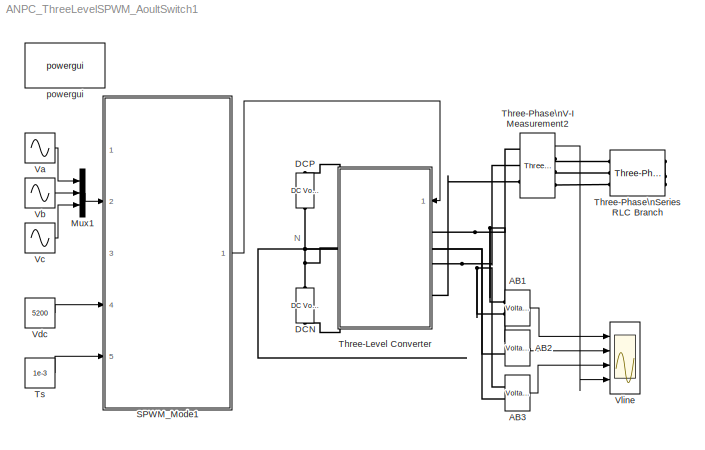
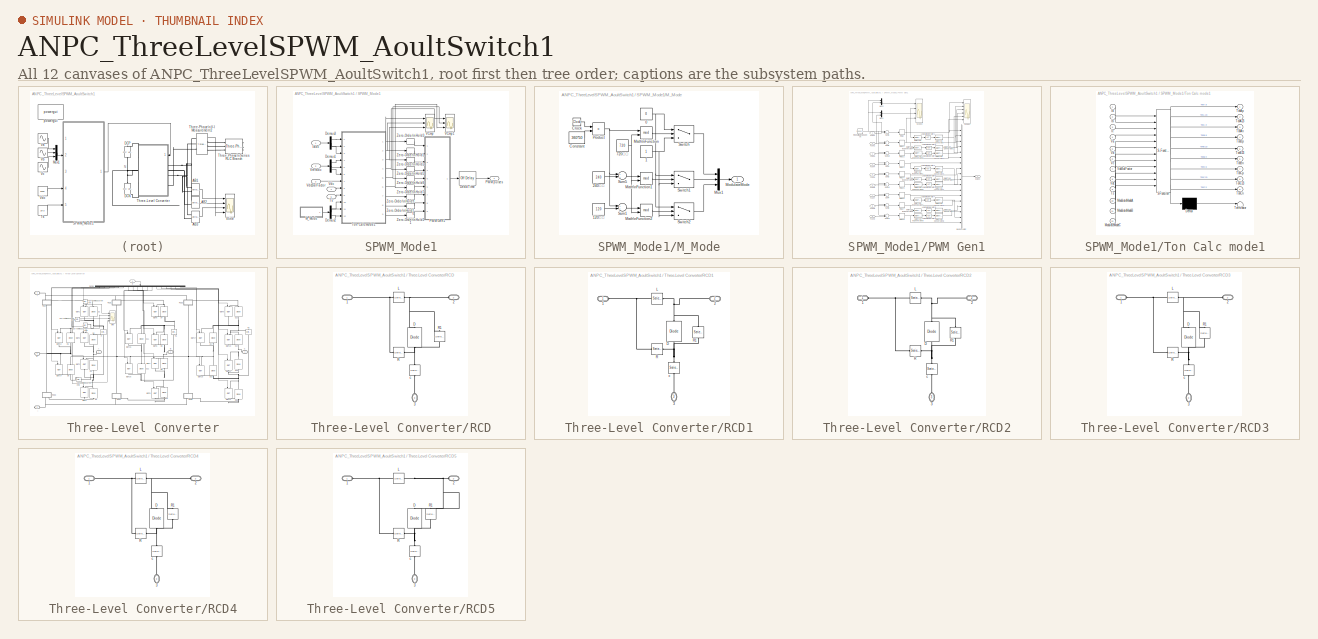
[diagram: thumbnail index - all 12 canvases of the model, root first then tree order]
MODEL ANPC_ThreeLevelSPWM_AoultSwitch1
KIND model
BLOCK [Reference] AB1  REF=powerlib/Measurements/Voltage Measurement
  OutputType = Complex
  PSBequivalent = 0
  PhasorSimulation = off
  Ports = [0, 1, 0, 0, 0, 2]
  SID = 787
  SourceBlock = powerlib/Measurements/Voltage Measurement
  SourceType = Voltage Measurement
BLOCK [Reference] AB2  REF=powerlib/Measurements/Voltage Measurement
  OutputType = Complex
  PSBequivalent = 0
  PhasorSimulation = off
  Ports = [0, 1, 0, 0, 0, 2]
  SID = 788
  SourceBlock = powerlib/Measurements/Voltage Measurement
  SourceType = Voltage Measurement
BLOCK [Reference] AB3  REF=powerlib/Measurements/Voltage Measurement
  OutputType = Complex
  PSBequivalent = 0
  PhasorSimulation = off
  Ports = [0, 1, 0, 0, 0, 2]
  SID = 789
  SourceBlock = powerlib/Measurements/Voltage Measurement
  SourceType = Voltage Measurement
BLOCK [Reference] DCN   REF=powerlib/Electrical\nSources/DC Voltage Source
  Amplitude = 300
  Measurements = None
  Ports = [0, 0, 0, 0, 0, 1, 1]
  SID = 662
  SourceBlock = powerlib/Electrical\nSources/DC Voltage Source
  SourceType = DC Voltage Source
BLOCK [Reference] DCP   REF=powerlib/Electrical\nSources/DC Voltage Source
  Amplitude = 300
  Measurements = None
  Ports = [0, 0, 0, 0, 0, 1, 1]
  SID = 663
  SourceBlock = powerlib/Electrical\nSources/DC Voltage Source
  SourceType = DC Voltage Source
BLOCK [Mux] Mux1
  DisplayOption = bar
  Inputs = 3
  Ports = [3, 1]
  SID = 1661
BLOCK [SubSystem] SPWM_Mode1
  FunctionWithSeparateData = off
  MaskHideContents = off
  MinAlgLoopOccurrences = off
  Opaque = off
  Ports = [5, 1]
  PropExecContextOutsideSubsystem = off
  RTWSystemCode = Auto
  RequestExecContextInheritance = off
  SID = 983
BLOCK [Reference] SPWM_Mode1/DeadTime  REF=powerlib_extras/Discrete \nControl Blocks/Discrete\nOn//Off Delay
  Ports = [1, 1]
  SID = 1678
  SourceBlock = powerlib_extras/Discrete \nControl Blocks/Discrete\nOn//Off Delay
  SourceType = Discrete On/Off Delay
  Ts = 1e-5
  delay = 20e-6
  ic = 4e-5
  type_delay = On delay
BLOCK [Demux] SPWM_Mode1/Demux1
  DisplayOption = bar
  Outputs = 3
  Ports = [1, 3]
  SID = 1659
BLOCK [Demux] SPWM_Mode1/Demux2
  DisplayOption = bar
  Outputs = 3
  Ports = [1, 3]
  SID = 1660
BLOCK [Demux] SPWM_Mode1/Demux3
  DisplayOption = bar
  Outputs = 3
  Ports = [1, 3]
  SID = 1657
BLOCK [Inport] SPWM_Mode1/Iabc
  IconDisplay = Port number
  SID = 1658
BLOCK [SubSystem] SPWM_Mode1/M_Mode
  FunctionWithSeparateData = off
  MaskHideContents = off
  MinAlgLoopOccurrences = off
  Opaque = off
  Ports = [0, 1]
  PropExecContextOutsideSubsystem = off
  RTWSystemCode = Auto
  RequestExecContextInheritance = off
  SID = 1640
BLOCK [Constant] SPWM_Mode1/M_Mode/0
  SID = 1654
  Value = 0
BLOCK [Constant] SPWM_Mode1/M_Mode/1
  SID = 1655
BLOCK [Constant] SPWM_Mode1/M_Mode/120¡ã
  SID = 1672
  Value = 120
BLOCK [Constant] SPWM_Mode1/M_Mode/240¡ã
  SID = 1671
  Value = 240
BLOCK [Constant] SPWM_Mode1/M_Mode/720¡ã
  SID = 1651
  Value = 720
BLOCK [Clock] SPWM_Mode1/M_Mode/Clock
  SID = 1641
BLOCK [Constant] SPWM_Mode1/M_Mode/Constant
  SID = 1642
  Value = 360*50
BLOCK [Math] SPWM_Mode1/M_Mode/Math\nFunction
  Operator = mod
  Ports = [2, 1]
  SID = 1650
BLOCK [Math] SPWM_Mode1/M_Mode/Math\nFunction1
  Operator = mod
  Ports = [2, 1]
  SID = 1665
BLOCK [Math] SPWM_Mode1/M_Mode/Math\nFunction2
  Operator = mod
  Ports = [2, 1]
  SID = 1668
BLOCK [Outport] SPWM_Mode1/M_Mode/ModulateMode
  IconDisplay = Port number
  SID = 1652
BLOCK [Mux] SPWM_Mode1/M_Mode/Mux1
  DisplayOption = bar
  Inputs = 3
  Ports = [3, 1]
  SID = 1673
BLOCK [Product] SPWM_Mode1/M_Mode/Product
  InputSameDT = off
  OutDataTypeStr = Inherit: Inherit via internal rule
  Ports = [2, 1]
  SID = 1644
  SaturateOnIntegerOverflow = off
BLOCK [Sum] SPWM_Mode1/M_Mode/Sum1
  Ports = [2, 1]
  SID = 1669
BLOCK [Sum] SPWM_Mode1/M_Mode/Sum5
  Ports = [2, 1]
  SID = 1667
BLOCK [Switch] SPWM_Mode1/M_Mode/Switch
  InputSameDT = off
  SID = 1653
  SaturateOnIntegerOverflow = off
  Threshold = 360
BLOCK [Switch] SPWM_Mode1/M_Mode/Switch1
  InputSameDT = off
  SID = 1666
  SaturateOnIntegerOverflow = off
  Threshold = 360
BLOCK [Switch] SPWM_Mode1/M_Mode/Switch2
  InputSameDT = off
  SID = 1670
  SaturateOnIntegerOverflow = off
  Threshold = 360
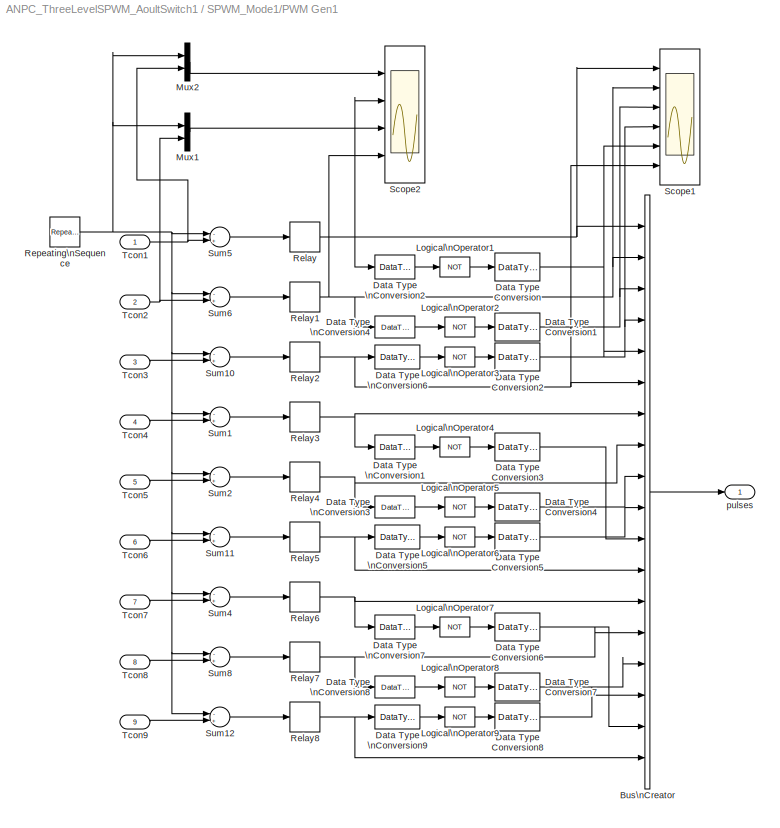
BLOCK [SubSystem] SPWM_Mode1/PWM Gen1
  FunctionWithSeparateData = off
  MaskHideContents = off
  MinAlgLoopOccurrences = off
  Opaque = off
  Ports = [9, 1]
  PropExecContextOutsideSubsystem = off
  RTWSystemCode = Auto
  RequestExecContextInheritance = off
  SID = 1566
BLOCK [BusCreator] SPWM_Mode1/PWM Gen1/Bus\nCreator
  DisplayOption = bar
  Inputs = 18
  Ports = [18, 1]
  SID = 1579
BLOCK [DataTypeConversion] SPWM_Mode1/PWM Gen1/Data Type Conversion
  OutDataTypeStr = double
  RndMeth = Floor
  SID = 1589
  SaturateOnIntegerOverflow = off
BLOCK [DataTypeConversion] SPWM_Mode1/PWM Gen1/Data Type Conversion1
  OutDataTypeStr = double
  RndMeth = Floor
  SID = 1590
  SaturateOnIntegerOverflow = off
BLOCK [DataTypeConversion] SPWM_Mode1/PWM Gen1/Data Type Conversion2
  OutDataTypeStr = double
  RndMeth = Floor
  SID = 1591
  SaturateOnIntegerOverflow = off
BLOCK [DataTypeConversion] SPWM_Mode1/PWM Gen1/Data Type Conversion3
  OutDataTypeStr = double
  RndMeth = Floor
  SID = 1592
  SaturateOnIntegerOverflow = off
BLOCK [DataTypeConversion] SPWM_Mode1/PWM Gen1/Data Type Conversion4
  OutDataTypeStr = double
  RndMeth = Floor
  SID = 1593
  SaturateOnIntegerOverflow = off
BLOCK [DataTypeConversion] SPWM_Mode1/PWM Gen1/Data Type Conversion5
  OutDataTypeStr = double
  RndMeth = Floor
  SID = 1594
  SaturateOnIntegerOverflow = off
BLOCK [DataTypeConversion] SPWM_Mode1/PWM Gen1/Data Type Conversion6
  OutDataTypeStr = double
  RndMeth = Floor
  SID = 1595
  SaturateOnIntegerOverflow = off
BLOCK [DataTypeConversion] SPWM_Mode1/PWM Gen1/Data Type Conversion7
  OutDataTypeStr = double
  RndMeth = Floor
  SID = 1596
  SaturateOnIntegerOverflow = off
BLOCK [DataTypeConversion] SPWM_Mode1/PWM Gen1/Data Type Conversion8
  OutDataTypeStr = double
  RndMeth = Floor
  SID = 1597
  SaturateOnIntegerOverflow = off
BLOCK [DataTypeConversion] SPWM_Mode1/PWM Gen1/Data Type \nConversion1
  OutDataTypeStr = boolean
  SID = 1580
BLOCK [DataTypeConversion] SPWM_Mode1/PWM Gen1/Data Type \nConversion2
  OutDataTypeStr = boolean
  SID = 1581
BLOCK [DataTypeConversion] SPWM_Mode1/PWM Gen1/Data Type \nConversion3
  OutDataTypeStr = boolean
  SID = 1582
BLOCK [DataTypeConversion] SPWM_Mode1/PWM Gen1/Data Type \nConversion4
  OutDataTypeStr = boolean
  SID = 1583
BLOCK [DataTypeConversion] SPWM_Mode1/PWM Gen1/Data Type \nConversion5
  OutDataTypeStr = boolean
  SID = 1584
BLOCK [DataTypeConversion] SPWM_Mode1/PWM Gen1/Data Type \nConversion6
  OutDataTypeStr = boolean
  SID = 1585
BLOCK [DataTypeConversion] SPWM_Mode1/PWM Gen1/Data Type \nConversion7
  OutDataTypeStr = boolean
  SID = 1586
BLOCK [DataTypeConversion] SPWM_Mode1/PWM Gen1/Data Type \nConversion8
  OutDataTypeStr = boolean
  SID = 1587
BLOCK [DataTypeConversion] SPWM_Mode1/PWM Gen1/Data Type \nConversion9
  OutDataTypeStr = boolean
  SID = 1588
BLOCK [Logic] SPWM_Mode1/PWM Gen1/Logical\nOperator1
  Operator = NOT
  Ports = [1, 1]
  SID = 1598
BLOCK [Logic] SPWM_Mode1/PWM Gen1/Logical\nOperator2
  Operator = NOT
  Ports = [1, 1]
  SID = 1599
BLOCK [Logic] SPWM_Mode1/PWM Gen1/Logical\nOperator3
  Operator = NOT
  Ports = [1, 1]
  SID = 1600
BLOCK [Logic] SPWM_Mode1/PWM Gen1/Logical\nOperator4
  Operator = NOT
  Ports = [1, 1]
  SID = 1601
BLOCK [Logic] SPWM_Mode1/PWM Gen1/Logical\nOperator5
  Operator = NOT
  Ports = [1, 1]
  SID = 1602
BLOCK [Logic] SPWM_Mode1/PWM Gen1/Logical\nOperator6
  Operator = NOT
  Ports = [1, 1]
  SID = 1603
BLOCK [Logic] SPWM_Mode1/PWM Gen1/Logical\nOperator7
  Operator = NOT
  Ports = [1, 1]
  SID = 1604
BLOCK [Logic] SPWM_Mode1/PWM Gen1/Logical\nOperator8
  Operator = NOT
  Ports = [1, 1]
  SID = 1605
BLOCK [Logic] SPWM_Mode1/PWM Gen1/Logical\nOperator9
  Operator = NOT
  Ports = [1, 1]
  SID = 1606
BLOCK [Mux] SPWM_Mode1/PWM Gen1/Mux1
  DisplayOption = bar
  Inputs = 2
  Ports = [2, 1]
  SID = 1607
BLOCK [Mux] SPWM_Mode1/PWM Gen1/Mux2
  DisplayOption = bar
  Inputs = 2
  Ports = [2, 1]
  SID = 1608
BLOCK [Relay] SPWM_Mode1/PWM Gen1/Relay
  OffSwitchValue = -1e-6
  OnSwitchValue = 1e-6
  SID = 1609
BLOCK [Relay] SPWM_Mode1/PWM Gen1/Relay1
  OffSwitchValue = -1e-6
  OnSwitchValue = 1e-6
  SID = 1610
BLOCK [Relay] SPWM_Mode1/PWM Gen1/Relay2
  OffSwitchValue = -1e-6
  OnSwitchValue = 1e-6
  SID = 1611
BLOCK [Relay] SPWM_Mode1/PWM Gen1/Relay3
  OffSwitchValue = -1e-6
  OnSwitchValue = 1e-6
  SID = 1612
BLOCK [Relay] SPWM_Mode1/PWM Gen1/Relay4
  OffSwitchValue = -1e-6
  OnSwitchValue = 1e-6
  SID = 1613
BLOCK [Relay] SPWM_Mode1/PWM Gen1/Relay5
  OffSwitchValue = -1e-6
  OnSwitchValue = 1e-6
  SID = 1614
BLOCK [Relay] SPWM_Mode1/PWM Gen1/Relay6
  OffSwitchValue = -1e-6
  OnSwitchValue = 1e-6
  SID = 1615
BLOCK [Relay] SPWM_Mode1/PWM Gen1/Relay7
  OffSwitchValue = -1e-6
  OnSwitchValue = 1e-6
  SID = 1616
BLOCK [Relay] SPWM_Mode1/PWM Gen1/Relay8
  OffSwitchValue = -1e-6
  OnSwitchValue = 1e-6
  SID = 1617
BLOCK [Reference] SPWM_Mode1/PWM Gen1/Repeating\nSequence  REF=simulink/Sources/Repeating\nSequence
  Ports = [0, 1]
  SID = 1618
  SourceBlock = simulink/Sources/Repeating\nSequence
  SourceType = Repeating table
  rep_seq_t = [0 1/1500 1/750]
  rep_seq_y = [1e-3 0 1e-3]
BLOCK [Scope] SPWM_Mode1/PWM Gen1/Scope1
  DataFormat = StructureWithTime
  Floating = off
  LimitDataPoints = off
  MaxDataPoints = 10000
  NumInputPorts = 6
  Ports = [6]
  SID = 1619
  SampleTime = 0
  SaveName = ScopeData4
  ShowLegends = off
  YMax = 1.5~1.5~1.5~1.5~1.5~1.5
  YMin = -0.5~-0.5~-0.5~-0.5~-0.5~-0.5
  ZoomMode = xonly
BLOCK [Scope] SPWM_Mode1/PWM Gen1/Scope2
  DataFormat = StructureWithTime
  Floating = off
  LimitDataPoints = off
  MaxDataPoints = 10000
  NumInputPorts = 4
  Ports = [4]
  SID = 1620
  SampleTime = 0
  SaveName = ScopeData1
  ShowLegends = off
  YMax = 1.5~1.5~1.5~1.5
  YMin = -0.5~-0.5~-0.5~-0.5
  ZoomMode = xonly
BLOCK [Sum] SPWM_Mode1/PWM Gen1/Sum1
  Inputs = -+
  Ports = [2, 1]
  SID = 1621
BLOCK [Sum] SPWM_Mode1/PWM Gen1/Sum10
  Inputs = -+
  Ports = [2, 1]
  SID = 1622
BLOCK [Sum] SPWM_Mode1/PWM Gen1/Sum11
  Inputs = -+
  Ports = [2, 1]
  SID = 1623
BLOCK [Sum] SPWM_Mode1/PWM Gen1/Sum12
  Inputs = -+
  Ports = [2, 1]
  SID = 1624
BLOCK [Sum] SPWM_Mode1/PWM Gen1/Sum2
  Inputs = -+
  Ports = [2, 1]
  SID = 1625
BLOCK [Sum] SPWM_Mode1/PWM Gen1/Sum4
  Inputs = -+
  Ports = [2, 1]
  SID = 1627
BLOCK [Sum] SPWM_Mode1/PWM Gen1/Sum5
  Inputs = -+
  Ports = [2, 1]
  SID = 1628
BLOCK [Sum] SPWM_Mode1/PWM Gen1/Sum6
  Inputs = -+
  Ports = [2, 1]
  SID = 1629
BLOCK [Sum] SPWM_Mode1/PWM Gen1/Sum8
  Inputs = -+
  Ports = [2, 1]
  SID = 1631
BLOCK [Inport] SPWM_Mode1/PWM Gen1/Tcon1
  IconDisplay = Port number
  SID = 1567
BLOCK [Inport] SPWM_Mode1/PWM Gen1/Tcon2
  IconDisplay = Port number
  Port = 2
  SID = 1568
BLOCK [Inport] SPWM_Mode1/PWM Gen1/Tcon3
  IconDisplay = Port number
  Port = 3
  SID = 1569
BLOCK [Inport] SPWM_Mode1/PWM Gen1/Tcon4
  IconDisplay = Port number
  Port = 4
  SID = 1570
BLOCK [Inport] SPWM_Mode1/PWM Gen1/Tcon5
  IconDisplay = Port number
  Port = 5
  SID = 1571
BLOCK [Inport] SPWM_Mode1/PWM Gen1/Tcon6
  IconDisplay = Port number
  Port = 6
  SID = 1572
BLOCK [Inport] SPWM_Mode1/PWM Gen1/Tcon7
  IconDisplay = Port number
  Port = 7
  SID = 1573
BLOCK [Inport] SPWM_Mode1/PWM Gen1/Tcon8
  IconDisplay = Port number
  Port = 8
  SID = 1574
BLOCK [Inport] SPWM_Mode1/PWM Gen1/Tcon9
  IconDisplay = Port number
  Port = 9
  SID = 1575
BLOCK [Outport] SPWM_Mode1/PWM Gen1/pulses
  IconDisplay = Port number
  SID = 1638
BLOCK [Outport] SPWM_Mode1/PWM pulses
  IconDisplay = Port number
  SID = 1068
BLOCK [SubSystem] SPWM_Mode1/Ton Calc mode1
  ErrorFcn = Stateflow.Translate.translate
  FunctionWithSeparateData = off
  MaskDescription = Embedded MATLAB block
  MaskDisplay = bgColor = Simulink.Root.ColorString2Rgb(get_param(gcbh, 'BackgroundColor')); image(imread('private/eml_membrane_16.png','png','BackgroundColor',bgColor(1:3)),'center'); disp([10 10 'fcn']);
  MaskHideContents = off
  MaskIconFrame = on
  MaskIconOpaque = off
  MaskIconRotate = none
  MaskIconUnits = normalized
  MaskPortRotate = default
  MaskSelfModifiable = on
  MaskType = Stateflow
  MinAlgLoopOccurrences = off
  Opaque = off
  PermitHierarchicalResolution = ExplicitOnly
  Ports = [12, 9]
  PropExecContextOutsideSubsystem = off
  RTWSystemCode = Auto
  RequestExecContextInheritance = off
  SFBlockType = MATLAB Function
  SID = 982
  TreatAsAtomicUnit = on
BLOCK [Demux] SPWM_Mode1/Ton Calc mode1/ Demux 
  Outputs = 1
  Ports = [1, 1]
  SID = 982::61
BLOCK [S-Function] SPWM_Mode1/Ton Calc mode1/ SFunction 
  EnableBusSupport = on
  FunctionName = sf_sfun
  PortCounts = [12 10]
  Ports = [12, 10]
  SID = 982::60
  Tag = Stateflow S-Function ANPC_ThreeLevelSPWM_AoultSwitch1 4
BLOCK [Terminator] SPWM_Mode1/Ton Calc mode1/ Terminator 
  SID = 982::63
BLOCK [Inport] SPWM_Mode1/Ton Calc mode1/Ia
  IconDisplay = Port number
  SID = 982::72
BLOCK [Inport] SPWM_Mode1/Ton Calc mode1/Ib
  IconDisplay = Port number
  Port = 2
  SID = 982::73
BLOCK [Inport] SPWM_Mode1/Ton Calc mode1/Ic
  IconDisplay = Port number
  Port = 3
  SID = 982::74
BLOCK [Inport] SPWM_Mode1/Ton Calc mode1/ModulateModeA
  IconDisplay = Port number
  Port = 10
  SID = 982::70
BLOCK [Inport] SPWM_Mode1/Ton Calc mode1/ModulateModeB
  IconDisplay = Port number
  Port = 11
  SID = 982::76
BLOCK [Inport] SPWM_Mode1/Ton Calc mode1/ModulateModeC
  IconDisplay = Port number
  Port = 12
  SID = 982::77
BLOCK [Outport] SPWM_Mode1/Ton Calc mode1/TonA23
  IconDisplay = Port number
  Port = 2
  SID = 982::64
BLOCK [Outport] SPWM_Mode1/Ton Calc mode1/TonAn
  IconDisplay = Port number
  Port = 3
  SID = 982::37
BLOCK [Outport] SPWM_Mode1/Ton Calc mode1/TonAp
  IconDisplay = Port number
  SID = 982::36
BLOCK [Outport] SPWM_Mode1/Ton Calc mode1/TonB23
  IconDisplay = Port number
  Port = 5
  SID = 982::66
BLOCK [Outport] SPWM_Mode1/Ton Calc mode1/TonBn
  IconDisplay = Port number
  Port = 6
  SID = 982::56
BLOCK [Outport] SPWM_Mode1/Ton Calc mode1/TonBp
  IconDisplay = Port number
  Port = 4
  SID = 982::38
BLOCK [Outport] SPWM_Mode1/Ton Calc mode1/TonC23
  IconDisplay = Port number
  Port = 8
  SID = 982::68
BLOCK [Outport] SPWM_Mode1/Ton Calc mode1/TonCn
  IconDisplay = Port number
  Port = 9
  SID = 982::58
BLOCK [Outport] SPWM_Mode1/Ton Calc mode1/TonCp
  IconDisplay = Port number
  Port = 7
  SID = 982::57
BLOCK [Inport] SPWM_Mode1/Ton Calc mode1/Ts
  IconDisplay = Port number
  Port = 9
  SID = 982::40
BLOCK [Inport] SPWM_Mode1/Ton Calc mode1/Va
  IconDisplay = Port number
  Port = 4
  SID = 982::44
BLOCK [Inport] SPWM_Mode1/Ton Calc mode1/Vb
  IconDisplay = Port number
  Port = 5
  SID = 982::54
BLOCK [Inport] SPWM_Mode1/Ton Calc mode1/Vc
  IconDisplay = Port number
  Port = 6
  SID = 982::55
BLOCK [Inport] SPWM_Mode1/Ton Calc mode1/Vdc
  IconDisplay = Port number
  Port = 8
  SID = 982::41
BLOCK [Inport] SPWM_Mode1/Ton Calc mode1/VdcBalFactor
  IconDisplay = Port number
  Port = 7
  SID = 982::75
BLOCK [Inport] SPWM_Mode1/Ts
  IconDisplay = Port number
  Port = 5
  SID = 988
BLOCK [Scope] SPWM_Mode1/VCmp
  DataFormat = StructureWithTime
  Floating = off
  LimitDataPoints = off
  MaxDataPoints = 50000
  NumInputPorts = 3
  Ports = [3]
  SID = 1073
  SampleTime = 0.00001
  SaveName = A3
  SaveToWorkspace = on
  ShowLegends = off
  TimeRange = 0.5
  YMax = 0.00035~0.001~0.00085
  YMin = 0.00015~0~0.00065
  ZoomMode = xonly
BLOCK [Scope] SPWM_Mode1/VCmp1
  DataFormat = StructureWithTime
  Floating = off
  LimitDataPoints = off
  MaxDataPoints = 50000
  NumInputPorts = 3
  Ports = [3]
  SID = 1677
  SampleTime = 0.00001
  SaveName = A1
  SaveToWorkspace = on
  ShowLegends = off
  TimeRange = 0.05095198250172486
  YMax = 0.001~0.001~0.001
  YMin = 0~0~0
  ZoomMode = xonly
BLOCK [Inport] SPWM_Mode1/Vdc
  IconDisplay = Port number
  Port = 4
  SID = 987
BLOCK [Inport] SPWM_Mode1/VdcBalFactor
  IconDisplay = Port number
  Port = 3
  SID = 1674
BLOCK [Inport] SPWM_Mode1/Vrefabc
  IconDisplay = Port number
  Port = 2
  SID = 984
BLOCK [ZeroOrderHold] SPWM_Mode1/Zero-Order\nHold1
  SID = 1070
  SampleTime = 1/1500
BLOCK [ZeroOrderHold] SPWM_Mode1/Zero-Order\nHold10
  SID = 1079
  SampleTime = 1/1500
BLOCK [ZeroOrderHold] SPWM_Mode1/Zero-Order\nHold11
  SID = 1080
  SampleTime = 1/1500
BLOCK [ZeroOrderHold] SPWM_Mode1/Zero-Order\nHold2
  SID = 1071
  SampleTime = 1/1500
BLOCK [ZeroOrderHold] SPWM_Mode1/Zero-Order\nHold3
  SID = 1061
  SampleTime = 1/1500
BLOCK [ZeroOrderHold] SPWM_Mode1/Zero-Order\nHold5
  SID = 1074
  SampleTime = 1/1500
BLOCK [ZeroOrderHold] SPWM_Mode1/Zero-Order\nHold6
  SID = 1075
  SampleTime = 1/1500
BLOCK [ZeroOrderHold] SPWM_Mode1/Zero-Order\nHold7
  SID = 1076
  SampleTime = 1/1500
BLOCK [ZeroOrderHold] SPWM_Mode1/Zero-Order\nHold9
  SID = 1078
  SampleTime = 1/1500
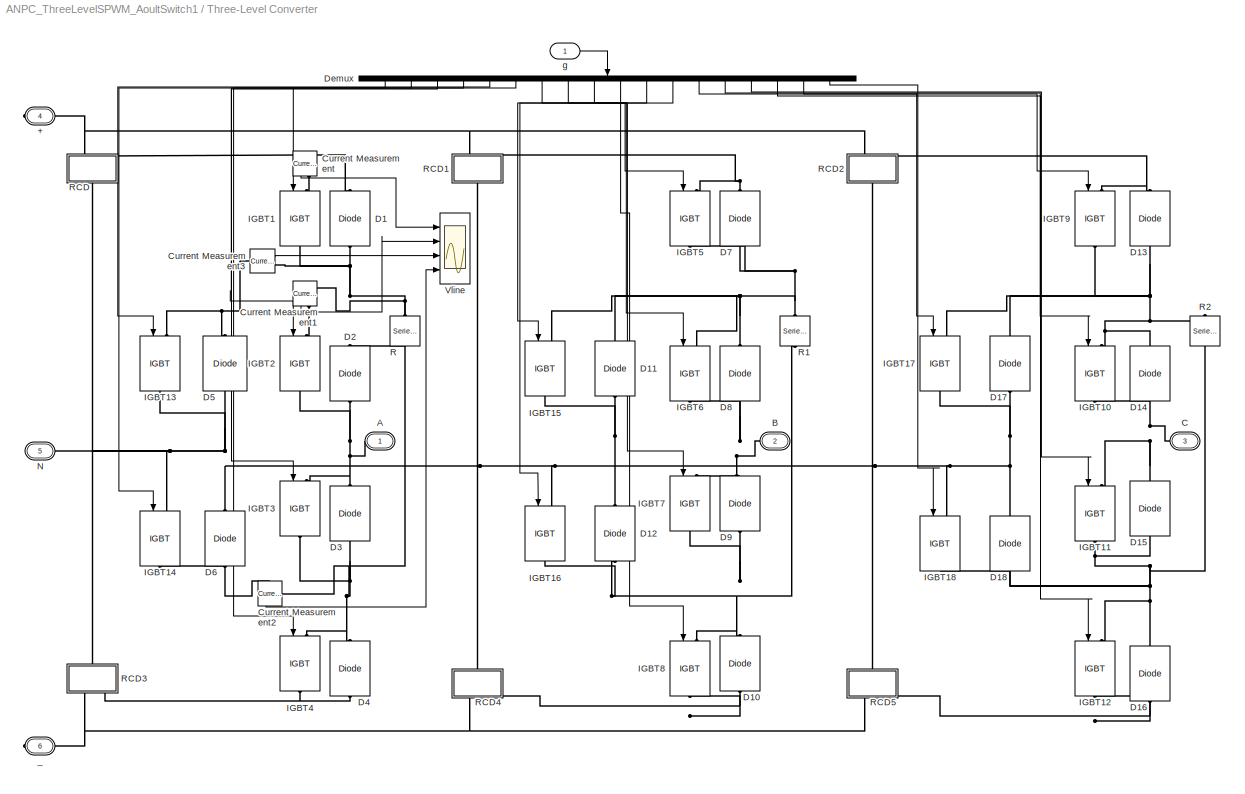
BLOCK [SubSystem] Three-Level Converter
  FunctionWithSeparateData = off
  MaskHideContents = off
  MinAlgLoopOccurrences = off
  Opaque = off
  Ports = [1, 0, 0, 0, 0, 3, 3]
  PropExecContextOutsideSubsystem = off
  RTWSystemCode = Auto
  RequestExecContextInheritance = off
  SID = 664
BLOCK [PMIOPort] Three-Level Converter/+
  Port = 4
  SID = 763
  Side = Right
  Tag = PMCPort
BLOCK [PMIOPort] Three-Level Converter/A
  Port = 1
  SID = 760
  Side = Left
  Tag = PMCPort
BLOCK [PMIOPort] Three-Level Converter/B
  Port = 2
  SID = 761
  Side = Left
  Tag = PMCPort
BLOCK [PMIOPort] Three-Level Converter/C
  Port = 3
  SID = 762
  Side = Left
  Tag = PMCPort
BLOCK [Reference] Three-Level Converter/Current Measurement  REF=powerlib/Measurements/Current Measurement
  OutputType = Complex
  PSBequivalent = 0
  PhasorSimulation = off
  Ports = [0, 1, 0, 0, 0, 1, 1]
  SID = 889
  SourceBlock = powerlib/Measurements/Current Measurement
  SourceType = Current Measurement
BLOCK [Reference] Three-Level Converter/Current Measurement1  REF=powerlib/Measurements/Current Measurement
  OutputType = Complex
  PSBequivalent = 0
  PhasorSimulation = off
  Ports = [0, 1, 0, 0, 0, 1, 1]
  SID = 890
  SourceBlock = powerlib/Measurements/Current Measurement
  SourceType = Current Measurement
BLOCK [Reference] Three-Level Converter/Current Measurement2  REF=powerlib/Measurements/Current Measurement
  OutputType = Complex
  PSBequivalent = 0
  PhasorSimulation = off
  Ports = [0, 1, 0, 0, 0, 1, 1]
  SID = 893
  SourceBlock = powerlib/Measurements/Current Measurement
  SourceType = Current Measurement
BLOCK [Reference] Three-Level Converter/Current Measurement3  REF=powerlib/Measurements/Current Measurement
  OutputType = Complex
  PSBequivalent = 0
  PhasorSimulation = off
  Ports = [0, 1, 0, 0, 0, 1, 1]
  SID = 1556
  SourceBlock = powerlib/Measurements/Current Measurement
  SourceType = Current Measurement
BLOCK [Reference] Three-Level Converter/D1  REF=powerlib/Power\nElectronics/Diode
  Cs = 0
  IC = 0
  Lon = 0
  Measurements = off
  Ports = [0, 0, 0, 0, 0, 1, 1]
  Ron = 1e-3
  Rs = inf
  SID = 666
  SourceBlock = powerlib/Power\nElectronics/Diode
  SourceType = Diode
  UseSnubber = off
  Vf = 0.8
BLOCK [Reference] Three-Level Converter/D10  REF=powerlib/Power\nElectronics/Diode
  Cs = 0
  IC = 0
  Lon = 0
  Measurements = off
  Ports = [0, 0, 0, 0, 0, 1, 1]
  Ron = 1e-3
  Rs = inf
  SID = 667
  SourceBlock = powerlib/Power\nElectronics/Diode
  SourceType = Diode
  UseSnubber = off
  Vf = 0.8
BLOCK [Reference] Three-Level Converter/D11  REF=powerlib/Power\nElectronics/Diode
  Cs = 0
  IC = 0
  Lon = 0
  Measurements = off
  Ports = [0, 0, 0, 0, 0, 1, 1]
  Ron = 1e-3
  Rs = inf
  SID = 668
  SourceBlock = powerlib/Power\nElectronics/Diode
  SourceType = Diode
  UseSnubber = off
  Vf = 0.8
BLOCK [Reference] Three-Level Converter/D12  REF=powerlib/Power\nElectronics/Diode
  Cs = 0
  IC = 0
  Lon = 0
  Measurements = off
  Ports = [0, 0, 0, 0, 0, 1, 1]
  Ron = 1e-3
  Rs = inf
  SID = 669
  SourceBlock = powerlib/Power\nElectronics/Diode
  SourceType = Diode
  UseSnubber = off
  Vf = 0.8
BLOCK [Reference] Three-Level Converter/D13  REF=powerlib/Power\nElectronics/Diode
  Cs = 0
  IC = 0
  Lon = 0
  Measurements = off
  Ports = [0, 0, 0, 0, 0, 1, 1]
  Ron = 1e-3
  Rs = inf
  SID = 670
  SourceBlock = powerlib/Power\nElectronics/Diode
  SourceType = Diode
  UseSnubber = off
  Vf = 0.8
BLOCK [Reference] Three-Level Converter/D14  REF=powerlib/Power\nElectronics/Diode
  Cs = 0
  IC = 0
  Lon = 0
  Measurements = off
  Ports = [0, 0, 0, 0, 0, 1, 1]
  Ron = 1e-3
  Rs = inf
  SID = 671
  SourceBlock = powerlib/Power\nElectronics/Diode
  SourceType = Diode
  UseSnubber = off
  Vf = 0.8
BLOCK [Reference] Three-Level Converter/D15  REF=powerlib/Power\nElectronics/Diode
  Cs = 0
  IC = 0
  Lon = 0
  Measurements = off
  Ports = [0, 0, 0, 0, 0, 1, 1]
  Ron = 1e-3
  Rs = inf
  SID = 672
  SourceBlock = powerlib/Power\nElectronics/Diode
  SourceType = Diode
  UseSnubber = off
  Vf = 0.8
BLOCK [Reference] Three-Level Converter/D16  REF=powerlib/Power\nElectronics/Diode
  Cs = 0
  IC = 0
  Lon = 0
  Measurements = off
  Ports = [0, 0, 0, 0, 0, 1, 1]
  Ron = 1e-3
  Rs = inf
  SID = 673
  SourceBlock = powerlib/Power\nElectronics/Diode
  SourceType = Diode
  UseSnubber = off
  Vf = 0.8
BLOCK [Reference] Three-Level Converter/D17  REF=powerlib/Power\nElectronics/Diode
  Cs = 0
  IC = 0
  Lon = 0
  Measurements = off
  Ports = [0, 0, 0, 0, 0, 1, 1]
  Ron = 1e-3
  Rs = inf
  SID = 674
  SourceBlock = powerlib/Power\nElectronics/Diode
  SourceType = Diode
  UseSnubber = off
  Vf = 0.8
BLOCK [Reference] Three-Level Converter/D18  REF=powerlib/Power\nElectronics/Diode
  Cs = 0
  IC = 0
  Lon = 0
  Measurements = off
  Ports = [0, 0, 0, 0, 0, 1, 1]
  Ron = 1e-3
  Rs = inf
  SID = 675
  SourceBlock = powerlib/Power\nElectronics/Diode
  SourceType = Diode
  UseSnubber = off
  Vf = 0.8
BLOCK [Reference] Three-Level Converter/D2  REF=powerlib/Power\nElectronics/Diode
  Cs = 0
  IC = 0
  Lon = 0
  Measurements = off
  Ports = [0, 0, 0, 0, 0, 1, 1]
  Ron = 1e-3
  Rs = inf
  SID = 676
  SourceBlock = powerlib/Power\nElectronics/Diode
  SourceType = Diode
  UseSnubber = off
  Vf = 0.8
BLOCK [Reference] Three-Level Converter/D3  REF=powerlib/Power\nElectronics/Diode
  Cs = 0
  IC = 0
  Lon = 0
  Measurements = off
  Ports = [0, 0, 0, 0, 0, 1, 1]
  Ron = 1e-3
  Rs = inf
  SID = 677
  SourceBlock = powerlib/Power\nElectronics/Diode
  SourceType = Diode
  UseSnubber = off
  Vf = 0.8
BLOCK [Reference] Three-Level Converter/D4  REF=powerlib/Power\nElectronics/Diode
  Cs = 0
  IC = 0
  Lon = 0
  Measurements = off
  Ports = [0, 0, 0, 0, 0, 1, 1]
  Ron = 1e-3
  Rs = inf
  SID = 678
  SourceBlock = powerlib/Power\nElectronics/Diode
  SourceType = Diode
  UseSnubber = off
  Vf = 0.8
BLOCK [Reference] Three-Level Converter/D5  REF=powerlib/Power\nElectronics/Diode
  Cs = 0
  IC = 0
  Lon = 0
  Measurements = off
  Ports = [0, 0, 0, 0, 0, 1, 1]
  Ron = 1e-3
  Rs = inf
  SID = 679
  SourceBlock = powerlib/Power\nElectronics/Diode
  SourceType = Diode
  UseSnubber = off
  Vf = 0.8
BLOCK [Reference] Three-Level Converter/D6  REF=powerlib/Power\nElectronics/Diode
  Cs = 0
  IC = 0
  Lon = 0
  Measurements = off
  Ports = [0, 0, 0, 0, 0, 1, 1]
  Ron = 1e-3
  Rs = inf
  SID = 680
  SourceBlock = powerlib/Power\nElectronics/Diode
  SourceType = Diode
  UseSnubber = off
  Vf = 0.8
BLOCK [Reference] Three-Level Converter/D7  REF=powerlib/Power\nElectronics/Diode
  Cs = 0
  IC = 0
  Lon = 0
  Measurements = off
  Ports = [0, 0, 0, 0, 0, 1, 1]
  Ron = 1e-3
  Rs = inf
  SID = 681
  SourceBlock = powerlib/Power\nElectronics/Diode
  SourceType = Diode
  UseSnubber = off
  Vf = 0.8
BLOCK [Reference] Three-Level Converter/D8  REF=powerlib/Power\nElectronics/Diode
  Cs = 0
  IC = 0
  Lon = 0
  Measurements = off
  Ports = [0, 0, 0, 0, 0, 1, 1]
  Ron = 1e-3
  Rs = inf
  SID = 682
  SourceBlock = powerlib/Power\nElectronics/Diode
  SourceType = Diode
  UseSnubber = off
  Vf = 0.8
BLOCK [Reference] Three-Level Converter/D9  REF=powerlib/Power\nElectronics/Diode
  Cs = 0
  IC = 0
  Lon = 0
  Measurements = off
  Ports = [0, 0, 0, 0, 0, 1, 1]
  Ron = 1e-3
  Rs = inf
  SID = 683
  SourceBlock = powerlib/Power\nElectronics/Diode
  SourceType = Diode
  UseSnubber = off
  Vf = 0.8
BLOCK [Demux] Three-Level Converter/Demux
  DisplayOption = bar
  Outputs = 18
  Ports = [1, 18]
  SID = 684
BLOCK [Reference] Three-Level Converter/IGBT1  REF=powerlib/Power\nElectronics/IGBT
  Cs = inf
  IC = 0
  Lon = 0
  Measurements = off
  Ports = [1, 0, 0, 0, 0, 1, 1]
  Ron = 1e-3
  Rs = 1e5
  SID = 685
  SourceBlock = powerlib/Power\nElectronics/IGBT
  SourceType = IGBT
  Tf = 0
  Tt = 0
  Vf = 1
BLOCK [Reference] Three-Level Converter/IGBT10  REF=powerlib/Power\nElectronics/IGBT
  Cs = inf
  IC = 0
  Lon = 0
  Measurements = off
  Ports = [1, 0, 0, 0, 0, 1, 1]
  Ron = 1e-3
  Rs = 1e5
  SID = 686
  SourceBlock = powerlib/Power\nElectronics/IGBT
  SourceType = IGBT
  Tf = 0
  Tt = 0
  Vf = 1
BLOCK [Reference] Three-Level Converter/IGBT11  REF=powerlib/Power\nElectronics/IGBT
  Cs = inf
  IC = 0
  Lon = 0
  Measurements = off
  Ports = [1, 0, 0, 0, 0, 1, 1]
  Ron = 1e-3
  Rs = 1e5
  SID = 687
  SourceBlock = powerlib/Power\nElectronics/IGBT
  SourceType = IGBT
  Tf = 0
  Tt = 0
  Vf = 1
BLOCK [Reference] Three-Level Converter/IGBT12  REF=powerlib/Power\nElectronics/IGBT
  Cs = inf
  IC = 0
  Lon = 0
  Measurements = off
  Ports = [1, 0, 0, 0, 0, 1, 1]
  Ron = 1e-3
  Rs = 1e5
  SID = 688
  SourceBlock = powerlib/Power\nElectronics/IGBT
  SourceType = IGBT
  Tf = 0
  Tt = 0
  Vf = 1
BLOCK [Reference] Three-Level Converter/IGBT13  REF=powerlib/Power\nElectronics/IGBT
  Cs = inf
  IC = 0
  Lon = 0
  Measurements = off
  Ports = [1, 0, 0, 0, 0, 1, 1]
  Ron = 1e-3
  Rs = 1e5
  SID = 689
  SourceBlock = powerlib/Power\nElectronics/IGBT
  SourceType = IGBT
  Tf = 0
  Tt = 0
  Vf = 1
BLOCK [Reference] Three-Level Converter/IGBT14  REF=powerlib/Power\nElectronics/IGBT
  Cs = inf
  IC = 0
  Lon = 0
  Measurements = off
  Ports = [1, 0, 0, 0, 0, 1, 1]
  Ron = 1e-3
  Rs = 1e5
  SID = 690
  SourceBlock = powerlib/Power\nElectronics/IGBT
  SourceType = IGBT
  Tf = 0
  Tt = 0
  Vf = 1
BLOCK [Reference] Three-Level Converter/IGBT15  REF=powerlib/Power\nElectronics/IGBT
  Cs = inf
  IC = 0
  Lon = 0
  Measurements = off
  Ports = [1, 0, 0, 0, 0, 1, 1]
  Ron = 1e-3
  Rs = 1e5
  SID = 691
  SourceBlock = powerlib/Power\nElectronics/IGBT
  SourceType = IGBT
  Tf = 0
  Tt = 0
  Vf = 1
BLOCK [Reference] Three-Level Converter/IGBT16  REF=powerlib/Power\nElectronics/IGBT
  Cs = inf
  IC = 0
  Lon = 0
  Measurements = off
  Ports = [1, 0, 0, 0, 0, 1, 1]
  Ron = 1e-3
  Rs = 1e5
  SID = 692
  SourceBlock = powerlib/Power\nElectronics/IGBT
  SourceType = IGBT
  Tf = 0
  Tt = 0
  Vf = 1
BLOCK [Reference] Three-Level Converter/IGBT17  REF=powerlib/Power\nElectronics/IGBT
  Cs = inf
  IC = 0
  Lon = 0
  Measurements = off
  Ports = [1, 0, 0, 0, 0, 1, 1]
  Ron = 1e-3
  Rs = 1e5
  SID = 693
  SourceBlock = powerlib/Power\nElectronics/IGBT
  SourceType = IGBT
  Tf = 0
  Tt = 0
  Vf = 1
BLOCK [Reference] Three-Level Converter/IGBT18  REF=powerlib/Power\nElectronics/IGBT
  Cs = inf
  IC = 0
  Lon = 0
  Measurements = off
  Ports = [1, 0, 0, 0, 0, 1, 1]
  Ron = 1e-3
  Rs = 1e5
  SID = 694
  SourceBlock = powerlib/Power\nElectronics/IGBT
  SourceType = IGBT
  Tf = 0
  Tt = 0
  Vf = 1
BLOCK [Reference] Three-Level Converter/IGBT2  REF=powerlib/Power\nElectronics/IGBT
  Cs = inf
  IC = 0
  Lon = 0
  Measurements = off
  Ports = [1, 0, 0, 0, 0, 1, 1]
  Ron = 1e-3
  Rs = 1e5
  SID = 695
  SourceBlock = powerlib/Power\nElectronics/IGBT
  SourceType = IGBT
  Tf = 0
  Tt = 0
  Vf = 1
BLOCK [Reference] Three-Level Converter/IGBT3  REF=powerlib/Power\nElectronics/IGBT
  Cs = inf
  IC = 0
  Lon = 0
  Measurements = off
  Ports = [1, 0, 0, 0, 0, 1, 1]
  Ron = 1e-3
  Rs = 1e5
  SID = 696
  SourceBlock = powerlib/Power\nElectronics/IGBT
  SourceType = IGBT
  Tf = 0
  Tt = 0
  Vf = 1
BLOCK [Reference] Three-Level Converter/IGBT4  REF=powerlib/Power\nElectronics/IGBT
  Cs = inf
  IC = 0
  Lon = 0
  Measurements = off
  Ports = [1, 0, 0, 0, 0, 1, 1]
  Ron = 1e-3
  Rs = 1e5
  SID = 697
  SourceBlock = powerlib/Power\nElectronics/IGBT
  SourceType = IGBT
  Tf = 0
  Tt = 0
  Vf = 1
BLOCK [Reference] Three-Level Converter/IGBT5  REF=powerlib/Power\nElectronics/IGBT
  Cs = inf
  IC = 0
  Lon = 0
  Measurements = off
  Ports = [1, 0, 0, 0, 0, 1, 1]
  Ron = 1e-3
  Rs = 1e5
  SID = 698
  SourceBlock = powerlib/Power\nElectronics/IGBT
  SourceType = IGBT
  Tf = 0
  Tt = 0
  Vf = 1
BLOCK [Reference] Three-Level Converter/IGBT6  REF=powerlib/Power\nElectronics/IGBT
  Cs = inf
  IC = 0
  Lon = 0
  Measurements = off
  Ports = [1, 0, 0, 0, 0, 1, 1]
  Ron = 1e-3
  Rs = 1e5
  SID = 699
  SourceBlock = powerlib/Power\nElectronics/IGBT
  SourceType = IGBT
  Tf = 0
  Tt = 0
  Vf = 1
BLOCK [Reference] Three-Level Converter/IGBT7  REF=powerlib/Power\nElectronics/IGBT
  Cs = inf
  IC = 0
  Lon = 0
  Measurements = off
  Ports = [1, 0, 0, 0, 0, 1, 1]
  Ron = 1e-3
  Rs = 1e5
  SID = 700
  SourceBlock = powerlib/Power\nElectronics/IGBT
  SourceType = IGBT
  Tf = 0
  Tt = 0
  Vf = 1
BLOCK [Reference] Three-Level Converter/IGBT8  REF=powerlib/Power\nElectronics/IGBT
  Cs = inf
  IC = 0
  Lon = 0
  Measurements = off
  Ports = [1, 0, 0, 0, 0, 1, 1]
  Ron = 1e-3
  Rs = 1e5
  SID = 701
  SourceBlock = powerlib/Power\nElectronics/IGBT
  SourceType = IGBT
  Tf = 0
  Tt = 0
  Vf = 1
BLOCK [Reference] Three-Level Converter/IGBT9  REF=powerlib/Power\nElectronics/IGBT
  Cs = inf
  IC = 0
  Lon = 0
  Measurements = off
  Ports = [1, 0, 0, 0, 0, 1, 1]
  Ron = 1e-3
  Rs = 1e5
  SID = 702
  SourceBlock = powerlib/Power\nElectronics/IGBT
  SourceType = IGBT
  Tf = 0
  Tt = 0
  Vf = 1
BLOCK [PMIOPort] Three-Level Converter/N
  Port = 5
  SID = 764
  Side = Right
  Tag = PMCPort
BLOCK [Reference] Three-Level Converter/R  REF=powerlib/Elements/Series RLC Branch
  AttributesFormatString = \\n
  BranchType = R
  Capacitance = 1.0
  Inductance = 1.0
  InitialCurrent = 0
  InitialVoltage = 0
  LConnTagsString = __new0
  Measurements = None
  Ports = [0, 0, 0, 0, 0, 1, 1]
  RConnTagsString = __new0
  Resistance = 44000
  SID = 703
  SetiL0 = off
  Setx0 = off
  SourceBlock = powerlib/Elements/Series RLC Branch
  SourceType = Series RLC Branch
BLOCK [Reference] Three-Level Converter/R1  REF=powerlib/Elements/Series RLC Branch
  AttributesFormatString = \\n
  BranchType = R
  Capacitance = 1.0
  Inductance = 1.0
  InitialCurrent = 0
  InitialVoltage = 0
  LConnTagsString = __new0
  Measurements = None
  Ports = [0, 0, 0, 0, 0, 1, 1]
  RConnTagsString = __new0
  Resistance = 44000
  SID = 704
  SetiL0 = off
  Setx0 = off
  SourceBlock = powerlib/Elements/Series RLC Branch
  SourceType = Series RLC Branch
BLOCK [Reference] Three-Level Converter/R2  REF=powerlib/Elements/Series RLC Branch
  AttributesFormatString = \\n
  BranchType = R
  Capacitance = 1.0
  Inductance = 1.0
  InitialCurrent = 0
  InitialVoltage = 0
  LConnTagsString = __new0
  Measurements = None
  Ports = [0, 0, 0, 0, 0, 1, 1]
  RConnTagsString = __new0
  Resistance = 44000
  SID = 705
  SetiL0 = off
  Setx0 = off
  SourceBlock = powerlib/Elements/Series RLC Branch
  SourceType = Series RLC Branch
BLOCK [SubSystem] Three-Level Converter/RCD
  FunctionWithSeparateData = off
  MaskHideContents = off
  MinAlgLoopOccurrences = off
  Opaque = off
  Ports = [0, 0, 0, 0, 0, 2, 1]
  PropExecContextOutsideSubsystem = off
  RTWSystemCode = Auto
  RequestExecContextInheritance = off
  SID = 706
BLOCK [PMIOPort] Three-Level Converter/RCD/1
  Port = 1
  SID = 712
  Side = Left
BLOCK [PMIOPort] Three-Level Converter/RCD/2
  Port = 2
  SID = 713
  Side = Left
BLOCK [PMIOPort] Three-Level Converter/RCD/3
  Port = 3
  SID = 714
  Side = Right
BLOCK [Reference] Three-Level Converter/RCD/D  REF=powerlib/Power\nElectronics/Diode
  Cs = 0
  IC = 0
  Lon = 0
  Measurements = off
  Ports = [0, 0, 0, 0, 0, 1, 1]
  Ron = 1e-3
  Rs = inf
  SID = 707
  SourceBlock = powerlib/Power\nElectronics/Diode
  SourceType = Diode
  UseSnubber = off
  Vf = 0.8
BLOCK [Reference] Three-Level Converter/RCD/L  REF=powerlib/Elements/Series RLC Branch
  AttributesFormatString = \\n
  BranchType = RL
  Capacitance = 1.0
  Inductance = 5.59e-6
  InitialCurrent = 0
  InitialVoltage = 0
  LConnTagsString = __new0
  Measurements = None
  Ports = [0, 0, 0, 0, 0, 1, 1]
  RConnTagsString = __new0
  Resistance = 1e-4
  SID = 708
  SetiL0 = off
  Setx0 = off
  SourceBlock = powerlib/Elements/Series RLC Branch
  SourceType = Series RLC Branch
BLOCK [Reference] Three-Level Converter/RCD/R  REF=powerlib/Elements/Series RLC Branch
  AttributesFormatString = \\n
  BranchType = R
  Capacitance = 1.0
  Inductance = 1.0
  InitialCurrent = 0
  InitialVoltage = 0
  LConnTagsString = __new0
  Measurements = None
  Ports = [0, 0, 0, 0, 0, 1, 1]
  RConnTagsString = __new0
  Resistance = 0.5
  SID = 709
  SetiL0 = off
  Setx0 = off
  SourceBlock = powerlib/Elements/Series RLC Branch
  SourceType = Series RLC Branch
BLOCK [Reference] Three-Level Converter/RCD/R1  REF=powerlib/Elements/Series RLC Branch
  AttributesFormatString = \\n
  BranchType = R
  Capacitance = 1.0
  Inductance = 1.0
  InitialCurrent = 0
  InitialVoltage = 0
  LConnTagsString = __new0
  Measurements = None
  Ports = [0, 0, 0, 0, 0, 1, 1]
  RConnTagsString = __new0
  Resistance = 1e6
  SID = 710
  SetiL0 = off
  Setx0 = off
  SourceBlock = powerlib/Elements/Series RLC Branch
  SourceType = Series RLC Branch
BLOCK [Reference] Three-Level Converter/RCD/c  REF=powerlib/Elements/Series RLC Branch
  AttributesFormatString = \\n
  BranchType = C
  Capacitance = 5e-6
  Inductance = 1.0
  InitialCurrent = 0
  InitialVoltage = 0
  LConnTagsString = __new0
  Measurements = None
  Ports = [0, 0, 0, 0, 0, 1, 1]
  RConnTagsString = __new0
  Resistance = 1
  SID = 711
  SetiL0 = off
  Setx0 = off
  SourceBlock = powerlib/Elements/Series RLC Branch
  SourceType = Series RLC Branch
BLOCK [SubSystem] Three-Level Converter/RCD1
  FunctionWithSeparateData = off
  MaskHideContents = off
  MinAlgLoopOccurrences = off
  Opaque = off
  Ports = [0, 0, 0, 0, 0, 2, 1]
  PropExecContextOutsideSubsystem = off
  RTWSystemCode = Auto
  RequestExecContextInheritance = off
  SID = 715
BLOCK [PMIOPort] Three-Level Converter/RCD1/1
  Port = 1
  SID = 721
  Side = Left
BLOCK [PMIOPort] Three-Level Converter/RCD1/2
  Port = 2
  SID = 722
  Side = Left
BLOCK [PMIOPort] Three-Level Converter/RCD1/3
  Port = 3
  SID = 723
  Side = Right
BLOCK [Reference] Three-Level Converter/RCD1/D  REF=powerlib/Power\nElectronics/Diode
  Cs = 0
  IC = 0
  Lon = 0
  Measurements = off
  Ports = [0, 0, 0, 0, 0, 1, 1]
  Ron = 1e-3
  Rs = inf
  SID = 716
  SourceBlock = powerlib/Power\nElectronics/Diode
  SourceType = Diode
  UseSnubber = off
  Vf = 0.8
BLOCK [Reference] Three-Level Converter/RCD1/L  REF=powerlib/Elements/Series RLC Branch
  AttributesFormatString = \\n
  BranchType = RL
  Capacitance = 1.0
  Inductance = 5.59e-6
  InitialCurrent = 0
  InitialVoltage = 0
  LConnTagsString = __new0
  Measurements = None
  Ports = [0, 0, 0, 0, 0, 1, 1]
  RConnTagsString = __new0
  Resistance = 1e-4
  SID = 717
  SetiL0 = off
  Setx0 = off
  SourceBlock = powerlib/Elements/Series RLC Branch
  SourceType = Series RLC Branch
BLOCK [Reference] Three-Level Converter/RCD1/R  REF=powerlib/Elements/Series RLC Branch
  AttributesFormatString = \\n
  BranchType = R
  Capacitance = 1.0
  Inductance = 1.0
  InitialCurrent = 0
  InitialVoltage = 0
  LConnTagsString = __new0
  Measurements = None
  Ports = [0, 0, 0, 0, 0, 1, 1]
  RConnTagsString = __new0
  Resistance = 0.5
  SID = 718
  SetiL0 = off
  Setx0 = off
  SourceBlock = powerlib/Elements/Series RLC Branch
  SourceType = Series RLC Branch
BLOCK [Reference] Three-Level Converter/RCD1/R1  REF=powerlib/Elements/Series RLC Branch
  AttributesFormatString = \\n
  BranchType = R
  Capacitance = 1.0
  Inductance = 1.0
  InitialCurrent = 0
  InitialVoltage = 0
  LConnTagsString = __new0
  Measurements = None
  Ports = [0, 0, 0, 0, 0, 1, 1]
  RConnTagsString = __new0
  Resistance = 1e6
  SID = 719
  SetiL0 = off
  Setx0 = off
  SourceBlock = powerlib/Elements/Series RLC Branch
  SourceType = Series RLC Branch
BLOCK [Reference] Three-Level Converter/RCD1/c  REF=powerlib/Elements/Series RLC Branch
  AttributesFormatString = \\n
  BranchType = C
  Capacitance = 5e-6
  Inductance = 1.0
  InitialCurrent = 0
  InitialVoltage = 0
  LConnTagsString = __new0
  Measurements = None
  Ports = [0, 0, 0, 0, 0, 1, 1]
  RConnTagsString = __new0
  Resistance = 1
  SID = 720
  SetiL0 = off
  Setx0 = off
  SourceBlock = powerlib/Elements/Series RLC Branch
  SourceType = Series RLC Branch
BLOCK [SubSystem] Three-Level Converter/RCD2
  FunctionWithSeparateData = off
  MaskHideContents = off
  MinAlgLoopOccurrences = off
  Opaque = off
  Ports = [0, 0, 0, 0, 0, 2, 1]
  PropExecContextOutsideSubsystem = off
  RTWSystemCode = Auto
  RequestExecContextInheritance = off
  SID = 724
BLOCK [PMIOPort] Three-Level Converter/RCD2/1
  Port = 1
  SID = 730
  Side = Left
BLOCK [PMIOPort] Three-Level Converter/RCD2/2
  Port = 2
  SID = 731
  Side = Left
BLOCK [PMIOPort] Three-Level Converter/RCD2/3
  Port = 3
  SID = 732
  Side = Right
BLOCK [Reference] Three-Level Converter/RCD2/D  REF=powerlib/Power\nElectronics/Diode
  Cs = 0
  IC = 0
  Lon = 0
  Measurements = off
  Ports = [0, 0, 0, 0, 0, 1, 1]
  Ron = 1e-3
  Rs = inf
  SID = 725
  SourceBlock = powerlib/Power\nElectronics/Diode
  SourceType = Diode
  UseSnubber = off
  Vf = 0.8
BLOCK [Reference] Three-Level Converter/RCD2/L  REF=powerlib/Elements/Series RLC Branch
  AttributesFormatString = \\n
  BranchType = L
  Capacitance = 1.0
  Inductance = 5.59e-6
  InitialCurrent = 0
  InitialVoltage = 0
  LConnTagsString = __new0
  Measurements = None
  Ports = [0, 0, 0, 0, 0, 1, 1]
  RConnTagsString = __new0
  Resistance = 500^2/200e3
  SID = 726
  SetiL0 = off
  Setx0 = off
  SourceBlock = powerlib/Elements/Series RLC Branch
  SourceType = Series RLC Branch
BLOCK [Reference] Three-Level Converter/RCD2/R  REF=powerlib/Elements/Series RLC Branch
  AttributesFormatString = \\n
  BranchType = R
  Capacitance = 1.0
  Inductance = 1.0
  InitialCurrent = 0
  InitialVoltage = 0
  LConnTagsString = __new0
  Measurements = None
  Ports = [0, 0, 0, 0, 0, 1, 1]
  RConnTagsString = __new0
  Resistance = 0.5
  SID = 727
  SetiL0 = off
  Setx0 = off
  SourceBlock = powerlib/Elements/Series RLC Branch
  SourceType = Series RLC Branch
BLOCK [Reference] Three-Level Converter/RCD2/R1  REF=powerlib/Elements/Series RLC Branch
  AttributesFormatString = \\n
  BranchType = R
  Capacitance = 1.0
  Inductance = 1.0
  InitialCurrent = 0
  InitialVoltage = 0
  LConnTagsString = __new0
  Measurements = None
  Ports = [0, 0, 0, 0, 0, 1, 1]
  RConnTagsString = __new0
  Resistance = 1e6
  SID = 728
  SetiL0 = off
  Setx0 = off
  SourceBlock = powerlib/Elements/Series RLC Branch
  SourceType = Series RLC Branch
BLOCK [Reference] Three-Level Converter/RCD2/c  REF=powerlib/Elements/Series RLC Branch
  AttributesFormatString = \\n
  BranchType = C
  Capacitance = 5e-6
  Inductance = 1.0
  InitialCurrent = 0
  InitialVoltage = 0
  LConnTagsString = __new0
  Measurements = None
  Ports = [0, 0, 0, 0, 0, 1, 1]
  RConnTagsString = __new0
  Resistance = 1
  SID = 729
  SetiL0 = off
  Setx0 = off
  SourceBlock = powerlib/Elements/Series RLC Branch
  SourceType = Series RLC Branch
BLOCK [SubSystem] Three-Level Converter/RCD3
  FunctionWithSeparateData = off
  MaskHideContents = off
  MinAlgLoopOccurrences = off
  Opaque = off
  Ports = [0, 0, 0, 0, 0, 2, 1]
  PropExecContextOutsideSubsystem = off
  RTWSystemCode = Auto
  RequestExecContextInheritance = off
  SID = 733
BLOCK [PMIOPort] Three-Level Converter/RCD3/1
  Port = 1
  SID = 739
  Side = Left
BLOCK [PMIOPort] Three-Level Converter/RCD3/2
  Port = 2
  SID = 740
  Side = Left
BLOCK [PMIOPort] Three-Level Converter/RCD3/3
  Port = 3
  SID = 741
  Side = Right
BLOCK [Reference] Three-Level Converter/RCD3/D  REF=powerlib/Power\nElectronics/Diode
  Cs = 0
  IC = 0
  Lon = 0
  Measurements = off
  Ports = [0, 0, 0, 0, 0, 1, 1]
  Ron = 1e-3
  Rs = inf
  SID = 734
  SourceBlock = powerlib/Power\nElectronics/Diode
  SourceType = Diode
  UseSnubber = off
  Vf = 0.8
BLOCK [Reference] Three-Level Converter/RCD3/L  REF=powerlib/Elements/Series RLC Branch
  AttributesFormatString = \\n
  BranchType = RL
  Capacitance = 1.0
  Inductance = 5.59e-6
  InitialCurrent = 0
  InitialVoltage = 0
  LConnTagsString = __new0
  Measurements = None
  Ports = [0, 0, 0, 0, 0, 1, 1]
  RConnTagsString = __new0
  Resistance = 1e-4
  SID = 735
  SetiL0 = off
  Setx0 = off
  SourceBlock = powerlib/Elements/Series RLC Branch
  SourceType = Series RLC Branch
BLOCK [Reference] Three-Level Converter/RCD3/R  REF=powerlib/Elements/Series RLC Branch
  AttributesFormatString = \\n
  BranchType = R
  Capacitance = 1.0
  Inductance = 1.0
  InitialCurrent = 0
  InitialVoltage = 0
  LConnTagsString = __new0
  Measurements = None
  Ports = [0, 0, 0, 0, 0, 1, 1]
  RConnTagsString = __new0
  Resistance = 0.5
  SID = 736
  SetiL0 = off
  Setx0 = off
  SourceBlock = powerlib/Elements/Series RLC Branch
  SourceType = Series RLC Branch
BLOCK [Reference] Three-Level Converter/RCD3/R1  REF=powerlib/Elements/Series RLC Branch
  AttributesFormatString = \\n
  BranchType = R
  Capacitance = 1.0
  Inductance = 1.0
  InitialCurrent = 0
  InitialVoltage = 0
  LConnTagsString = __new0
  Measurements = None
  Ports = [0, 0, 0, 0, 0, 1, 1]
  RConnTagsString = __new0
  Resistance = 1e6
  SID = 737
  SetiL0 = off
  Setx0 = off
  SourceBlock = powerlib/Elements/Series RLC Branch
  SourceType = Series RLC Branch
BLOCK [Reference] Three-Level Converter/RCD3/c  REF=powerlib/Elements/Series RLC Branch
  AttributesFormatString = \\n
  BranchType = C
  Capacitance = 5e-6
  Inductance = 1.0
  InitialCurrent = 0
  InitialVoltage = 0
  LConnTagsString = __new0
  Measurements = None
  Ports = [0, 0, 0, 0, 0, 1, 1]
  RConnTagsString = __new0
  Resistance = 1
  SID = 738
  SetiL0 = off
  Setx0 = off
  SourceBlock = powerlib/Elements/Series RLC Branch
  SourceType = Series RLC Branch
BLOCK [SubSystem] Three-Level Converter/RCD4
  FunctionWithSeparateData = off
  MaskHideContents = off
  MinAlgLoopOccurrences = off
  Opaque = off
  Ports = [0, 0, 0, 0, 0, 2, 1]
  PropExecContextOutsideSubsystem = off
  RTWSystemCode = Auto
  RequestExecContextInheritance = off
  SID = 742
BLOCK [PMIOPort] Three-Level Converter/RCD4/1
  Port = 1
  SID = 748
  Side = Left
BLOCK [PMIOPort] Three-Level Converter/RCD4/2
  Port = 2
  SID = 749
  Side = Left
BLOCK [PMIOPort] Three-Level Converter/RCD4/3
  Port = 3
  SID = 750
  Side = Right
BLOCK [Reference] Three-Level Converter/RCD4/D  REF=powerlib/Power\nElectronics/Diode
  Cs = 0
  IC = 0
  Lon = 0
  Measurements = off
  Ports = [0, 0, 0, 0, 0, 1, 1]
  Ron = 1e-3
  Rs = inf
  SID = 743
  SourceBlock = powerlib/Power\nElectronics/Diode
  SourceType = Diode
  UseSnubber = off
  Vf = 0.8
BLOCK [Reference] Three-Level Converter/RCD4/L  REF=powerlib/Elements/Series RLC Branch
  AttributesFormatString = \\n
  BranchType = RL
  Capacitance = 1.0
  Inductance = 5.59e-6
  InitialCurrent = 0
  InitialVoltage = 0
  LConnTagsString = __new0
  Measurements = None
  Ports = [0, 0, 0, 0, 0, 1, 1]
  RConnTagsString = __new0
  Resistance = 1e-4
  SID = 744
  SetiL0 = off
  Setx0 = off
  SourceBlock = powerlib/Elements/Series RLC Branch
  SourceType = Series RLC Branch
BLOCK [Reference] Three-Level Converter/RCD4/R  REF=powerlib/Elements/Series RLC Branch
  AttributesFormatString = \\n
  BranchType = R
  Capacitance = 1.0
  Inductance = 1.0
  InitialCurrent = 0
  InitialVoltage = 0
  LConnTagsString = __new0
  Measurements = None
  Ports = [0, 0, 0, 0, 0, 1, 1]
  RConnTagsString = __new0
  Resistance = 0.5
  SID = 745
  SetiL0 = off
  Setx0 = off
  SourceBlock = powerlib/Elements/Series RLC Branch
  SourceType = Series RLC Branch
BLOCK [Reference] Three-Level Converter/RCD4/R1  REF=powerlib/Elements/Series RLC Branch
  AttributesFormatString = \\n
  BranchType = R
  Capacitance = 1.0
  Inductance = 1.0
  InitialCurrent = 0
  InitialVoltage = 0
  LConnTagsString = __new0
  Measurements = None
  Ports = [0, 0, 0, 0, 0, 1, 1]
  RConnTagsString = __new0
  Resistance = 1e6
  SID = 746
  SetiL0 = off
  Setx0 = off
  SourceBlock = powerlib/Elements/Series RLC Branch
  SourceType = Series RLC Branch
BLOCK [Reference] Three-Level Converter/RCD4/c  REF=powerlib/Elements/Series RLC Branch
  AttributesFormatString = \\n
  BranchType = C
  Capacitance = 5e-6
  Inductance = 1.0
  InitialCurrent = 0
  InitialVoltage = 0
  LConnTagsString = __new0
  Measurements = None
  Ports = [0, 0, 0, 0, 0, 1, 1]
  RConnTagsString = __new0
  Resistance = 1
  SID = 747
  SetiL0 = off
  Setx0 = off
  SourceBlock = powerlib/Elements/Series RLC Branch
  SourceType = Series RLC Branch
BLOCK [SubSystem] Three-Level Converter/RCD5
  FunctionWithSeparateData = off
  MaskHideContents = off
  MinAlgLoopOccurrences = off
  Opaque = off
  Ports = [0, 0, 0, 0, 0, 2, 1]
  PropExecContextOutsideSubsystem = off
  RTWSystemCode = Auto
  RequestExecContextInheritance = off
  SID = 751
BLOCK [PMIOPort] Three-Level Converter/RCD5/1
  Port = 1
  SID = 757
  Side = Left
BLOCK [PMIOPort] Three-Level Converter/RCD5/2
  Port = 2
  SID = 758
  Side = Left
BLOCK [PMIOPort] Three-Level Converter/RCD5/3
  Port = 3
  SID = 759
  Side = Right
BLOCK [Reference] Three-Level Converter/RCD5/D  REF=powerlib/Power\nElectronics/Diode
  Cs = 0
  IC = 0
  Lon = 0
  Measurements = off
  Ports = [0, 0, 0, 0, 0, 1, 1]
  Ron = 1e-3
  Rs = inf
  SID = 752
  SourceBlock = powerlib/Power\nElectronics/Diode
  SourceType = Diode
  UseSnubber = off
  Vf = 0.8
BLOCK [Reference] Three-Level Converter/RCD5/L  REF=powerlib/Elements/Series RLC Branch
  AttributesFormatString = \\n
  BranchType = RL
  Capacitance = 1.0
  Inductance = 5.59e-6
  InitialCurrent = 0
  InitialVoltage = 0
  LConnTagsString = __new0
  Measurements = None
  Ports = [0, 0, 0, 0, 0, 1, 1]
  RConnTagsString = __new0
  Resistance = 1e-4
  SID = 753
  SetiL0 = off
  Setx0 = off
  SourceBlock = powerlib/Elements/Series RLC Branch
  SourceType = Series RLC Branch
BLOCK [Reference] Three-Level Converter/RCD5/R  REF=powerlib/Elements/Series RLC Branch
  AttributesFormatString = \\n
  BranchType = R
  Capacitance = 1.0
  Inductance = 1.0
  InitialCurrent = 0
  InitialVoltage = 0
  LConnTagsString = __new0
  Measurements = None
  Ports = [0, 0, 0, 0, 0, 1, 1]
  RConnTagsString = __new0
  Resistance = 0.5
  SID = 754
  SetiL0 = off
  Setx0 = off
  SourceBlock = powerlib/Elements/Series RLC Branch
  SourceType = Series RLC Branch
BLOCK [Reference] Three-Level Converter/RCD5/R1  REF=powerlib/Elements/Series RLC Branch
  AttributesFormatString = \\n
  BranchType = R
  Capacitance = 1.0
  Inductance = 1.0
  InitialCurrent = 0
  InitialVoltage = 0
  LConnTagsString = __new0
  Measurements = None
  Ports = [0, 0, 0, 0, 0, 1, 1]
  RConnTagsString = __new0
  Resistance = 1e6
  SID = 755
  SetiL0 = off
  Setx0 = off
  SourceBlock = powerlib/Elements/Series RLC Branch
  SourceType = Series RLC Branch
BLOCK [Reference] Three-Level Converter/RCD5/c  REF=powerlib/Elements/Series RLC Branch
  AttributesFormatString = \\n
  BranchType = C
  Capacitance = 5e-6
  Inductance = 1.0
  InitialCurrent = 0
  InitialVoltage = 0
  LConnTagsString = __new0
  Measurements = None
  Ports = [0, 0, 0, 0, 0, 1, 1]
  RConnTagsString = __new0
  Resistance = 1
  SID = 756
  SetiL0 = off
  Setx0 = off
  SourceBlock = powerlib/Elements/Series RLC Branch
  SourceType = Series RLC Branch
BLOCK [Scope] Three-Level Converter/Vline
  DataFormat = StructureWithTime
  Floating = off
  LimitDataPoints = off
  MaxDataPoints = 50000
  NumInputPorts = 4
  Ports = [4]
  SID = 888
  SampleTime = 0.00001
  SaveName = A2
  SaveToWorkspace = on
  ShowLegends = off
  TimeRange = 0.05095198250172486
  YMax = 40~40~30~35
  YMin = -10~-10~-30~-35
  ZoomMode = xonly
BLOCK [PMIOPort] Three-Level Converter/_
  Port = 6
  SID = 765
  Side = Right
  Tag = PMCPort
BLOCK [Inport] Three-Level Converter/g
  IconDisplay = Port number
  SID = 665
BLOCK [Reference] Three-Phase\nSeries RLC Branch  REF=powerlib/Elements/Three-Phase\nSeries RLC Branch
  AttributesFormatString = \\n
  BranchType = RL
  Capacitance = 1e-6
  Inductance = 1e-3
  LConnTagsString = A|B|C
  Measurements = None
  Ports = [0, 0, 0, 0, 0, 3, 3]
  RConnTagsString = A|B|C
  Resistance = 1
  SID = 891
  SourceBlock = powerlib/Elements/Three-Phase\nSeries RLC Branch
  SourceType = Three-Phase Series RLC Branch
BLOCK [Reference] Three-Phase\nV-I Measurement2  REF=powerlib/Measurements/Three-Phase\nV-I Measurement
  CurrentMeasurement = yes
  Ipu = off
  LabelI = Iabc
  LabelV = Vabc
  OutputType = Complex
  PSBequivalent = 0
  Pbase = 100e6
  PhasorSimulation = off
  Ports = [0, 1, 0, 0, 0, 3, 3]
  SID = 895
  SetLabelI = off
  SetLabelV = off
  SourceBlock = powerlib/Measurements/Three-Phase\nV-I Measurement
  SourceType = Three-Phase VI Measurement
  Vbase = 500e3
  VoltageMeasurement = no
  Vpu = off
  VpuLL = off
BLOCK [Constant] Ts
  SID = 131
  Value = 1e-3
BLOCK [Sin] Va
  Amplitude = 2569
  Frequency = 100*pi
  Ports = [0, 1]
  SID = 124
  SampleTime = 0
BLOCK [Sin] Vb
  Amplitude = 2569
  Frequency = 100*pi
  Phase = -2*pi/3
  Ports = [0, 1]
  SID = 125
  SampleTime = 0
BLOCK [Sin] Vc
  Amplitude = 2569
  Frequency = 100*pi
  Phase = 2*pi/3
  Ports = [0, 1]
  SID = 126
  SampleTime = 0
BLOCK [Constant] Vdc
  SID = 132
  Value = 5200
BLOCK [Scope] Vline
  DataFormat = StructureWithTime
  Floating = off
  LimitDataPoints = off
  MaxDataPoints = 50000
  NumInputPorts = 4
  Ports = [4]
  SID = 790
  SampleTime = 0.00001
  SaveName = A
  SaveToWorkspace = on
  ShowLegends = off
  TimeRange = 0.07315761161915008
  YMax = 800~400~400~30
  YMin = -800~-400~-400~-30
  ZoomMode = xonly
BLOCK [Reference] powergui  REF=powerlib/powergui
  DisableRonSwitches = off
  DisableSnubberDevices = off
  DisableVfSwitches = off
  DisplayEquations = off
  DisplayStyle = 1
  EnableUseOfTLC = off
  ErrMax = 1e-4
  Frange = [0:2:500]
  FreqAxis = on
  FunctionMessages = off
  HookPort = off
  Interpol = off
  Iterations = 50
  MaxFrequency = 3500
  Pbase = 100e6
  Ports = []
  ResistiveCurrentMeasurement = off
  RestoreLinks = warning
  RmsSteady = 1
  SID = 135
  SPID = off
  SampleTime = 1e-5
  ShowGrid = off
  SolverType = Tustin
  SourceBlock = powerlib/powergui
  SourceType = PSB option menu block
  StartTime = 0.2
  SwTol = 0
  Ts = 0
  UnitsV = kV
  UnitsW = MW
  UserData = DataTag0
  UserDataPersistent = on
  Xlog = on
  Ylog = off
  ZoomFFT = on
  cycles = 1
  display = off
  echomessages = off
  frequency = 60
  frequencyindice = 0
  frequencyindicesteady = 1
  fundamental = 50
  methode = off
  save = off
  structure = A
  variable = ZData
  x0status = blocks
ANNOTATION (root): N
LINE AB1:1 -> Vline:1
LINE AB2:1 -> Vline:2
LINE AB3:1 -> Vline:3
LINE Mux1:1 -> SPWM_Mode1:2
LINE SPWM_Mode1/DeadTime:1 -> SPWM_Mode1/PWM pulses:1
LINE SPWM_Mode1/Demux1:1 -> SPWM_Mode1/Ton Calc mode1:4
LINE SPWM_Mode1/Demux1:2 -> SPWM_Mode1/Ton Calc mode1:5
LINE SPWM_Mode1/Demux1:3 -> SPWM_Mode1/Ton Calc mode1:6
LINE SPWM_Mode1/Demux2:1 -> SPWM_Mode1/Ton Calc mode1:10
LINE SPWM_Mode1/Demux2:2 -> SPWM_Mode1/Ton Calc mode1:11
LINE SPWM_Mode1/Demux2:3 -> SPWM_Mode1/Ton Calc mode1:12
LINE SPWM_Mode1/Demux3:1 -> SPWM_Mode1/Ton Calc mode1:1
LINE SPWM_Mode1/Demux3:2 -> SPWM_Mode1/Ton Calc mode1:2
LINE SPWM_Mode1/Demux3:3 -> SPWM_Mode1/Ton Calc mode1:3
LINE SPWM_Mode1/Iabc:1 -> SPWM_Mode1/Demux3:1
NET SPWM_Mode1/M_Mode/0:1 -> SPWM_Mode1/M_Mode/Switch1:1, SPWM_Mode1/M_Mode/Switch2:1, SPWM_Mode1/M_Mode/Switch:1
LINE SPWM_Mode1/M_Mode/120¡ã:1 -> SPWM_Mode1/M_Mode/Sum1:2
NET SPWM_Mode1/M_Mode/1:1 -> SPWM_Mode1/M_Mode/Switch1:3, SPWM_Mode1/M_Mode/Switch2:3, SPWM_Mode1/M_Mode/Switch:3
LINE SPWM_Mode1/M_Mode/240¡ã:1 -> SPWM_Mode1/M_Mode/Sum5:2
NET SPWM_Mode1/M_Mode/720¡ã:1 -> SPWM_Mode1/M_Mode/Math\nFunction1:2, SPWM_Mode1/M_Mode/Math\nFunction2:2, SPWM_Mode1/M_Mode/Math\nFunction:2
LINE SPWM_Mode1/M_Mode/Clock:1 -> SPWM_Mode1/M_Mode/Product:1
LINE SPWM_Mode1/M_Mode/Constant:1 -> SPWM_Mode1/M_Mode/Product:2
LINE SPWM_Mode1/M_Mode/Math\nFunction1:1 -> SPWM_Mode1/M_Mode/Switch1:2
LINE SPWM_Mode1/M_Mode/Math\nFunction2:1 -> SPWM_Mode1/M_Mode/Switch2:2
LINE SPWM_Mode1/M_Mode/Math\nFunction:1 -> SPWM_Mode1/M_Mode/Switch:2
LINE SPWM_Mode1/M_Mode/Mux1:1 -> SPWM_Mode1/M_Mode/ModulateMode:1
NET SPWM_Mode1/M_Mode/Product:1 -> SPWM_Mode1/M_Mode/Math\nFunction:1, SPWM_Mode1/M_Mode/Sum1:1, SPWM_Mode1/M_Mode/Sum5:1
LINE SPWM_Mode1/M_Mode/Sum1:1 -> SPWM_Mode1/M_Mode/Math\nFunction2:1
LINE SPWM_Mode1/M_Mode/Sum5:1 -> SPWM_Mode1/M_Mode/Math\nFunction1:1
LINE SPWM_Mode1/M_Mode/Switch1:1 -> SPWM_Mode1/M_Mode/Mux1:2
LINE SPWM_Mode1/M_Mode/Switch2:1 -> SPWM_Mode1/M_Mode/Mux1:3
LINE SPWM_Mode1/M_Mode/Switch:1 -> SPWM_Mode1/M_Mode/Mux1:1
LINE SPWM_Mode1/M_Mode:1 -> SPWM_Mode1/Demux2:1
LINE SPWM_Mode1/PWM Gen1/Bus\nCreator:1 -> SPWM_Mode1/PWM Gen1/pulses:1
NET SPWM_Mode1/PWM Gen1/Data Type Conversion1:1 -> SPWM_Mode1/PWM Gen1/Bus\nCreator:3, SPWM_Mode1/PWM Gen1/Scope1:3
NET SPWM_Mode1/PWM Gen1/Data Type Conversion2:1 -> SPWM_Mode1/PWM Gen1/Bus\nCreator:4, SPWM_Mode1/PWM Gen1/Scope1:4
LINE SPWM_Mode1/PWM Gen1/Data Type Conversion3:1 -> SPWM_Mode1/PWM Gen1/Bus\nCreator:11
LINE SPWM_Mode1/PWM Gen1/Data Type Conversion4:1 -> SPWM_Mode1/PWM Gen1/Bus\nCreator:9
LINE SPWM_Mode1/PWM Gen1/Data Type Conversion5:1 -> SPWM_Mode1/PWM Gen1/Bus\nCreator:10
LINE SPWM_Mode1/PWM Gen1/Data Type Conversion6:1 -> SPWM_Mode1/PWM Gen1/Bus\nCreator:17
LINE SPWM_Mode1/PWM Gen1/Data Type Conversion7:1 -> SPWM_Mode1/PWM Gen1/Bus\nCreator:15
LINE SPWM_Mode1/PWM Gen1/Data Type Conversion8:1 -> SPWM_Mode1/PWM Gen1/Bus\nCreator:16
NET SPWM_Mode1/PWM Gen1/Data Type Conversion:1 -> SPWM_Mode1/PWM Gen1/Bus\nCreator:5, SPWM_Mode1/PWM Gen1/Scope1:5
LINE SPWM_Mode1/PWM Gen1/Data Type \nConversion1:1 -> SPWM_Mode1/PWM Gen1/Logical\nOperator4:1
LINE SPWM_Mode1/PWM Gen1/Data Type \nConversion2:1 -> SPWM_Mode1/PWM Gen1/Logical\nOperator1:1
LINE SPWM_Mode1/PWM Gen1/Data Type \nConversion3:1 -> SPWM_Mode1/PWM Gen1/Logical\nOperator5:1
LINE SPWM_Mode1/PWM Gen1/Data Type \nConversion4:1 -> SPWM_Mode1/PWM Gen1/Logical\nOperator2:1
LINE SPWM_Mode1/PWM Gen1/Data Type \nConversion5:1 -> SPWM_Mode1/PWM Gen1/Logical\nOperator6:1
LINE SPWM_Mode1/PWM Gen1/Data Type \nConversion6:1 -> SPWM_Mode1/PWM Gen1/Logical\nOperator3:1
LINE SPWM_Mode1/PWM Gen1/Data Type \nConversion7:1 -> SPWM_Mode1/PWM Gen1/Logical\nOperator7:1
LINE SPWM_Mode1/PWM Gen1/Data Type \nConversion8:1 -> SPWM_Mode1/PWM Gen1/Logical\nOperator8:1
LINE SPWM_Mode1/PWM Gen1/Data Type \nConversion9:1 -> SPWM_Mode1/PWM Gen1/Logical\nOperator9:1
LINE SPWM_Mode1/PWM Gen1/Logical\nOperator1:1 -> SPWM_Mode1/PWM Gen1/Data Type Conversion:1
LINE SPWM_Mode1/PWM Gen1/Logical\nOperator2:1 -> SPWM_Mode1/PWM Gen1/Data Type Conversion1:1
LINE SPWM_Mode1/PWM Gen1/Logical\nOperator3:1 -> SPWM_Mode1/PWM Gen1/Data Type Conversion2:1
LINE SPWM_Mode1/PWM Gen1/Logical\nOperator4:1 -> SPWM_Mode1/PWM Gen1/Data Type Conversion3:1
LINE SPWM_Mode1/PWM Gen1/Logical\nOperator5:1 -> SPWM_Mode1/PWM Gen1/Data Type Conversion4:1
LINE SPWM_Mode1/PWM Gen1/Logical\nOperator6:1 -> SPWM_Mode1/PWM Gen1/Data Type Conversion5:1
LINE SPWM_Mode1/PWM Gen1/Logical\nOperator7:1 -> SPWM_Mode1/PWM Gen1/Data Type Conversion6:1
LINE SPWM_Mode1/PWM Gen1/Logical\nOperator8:1 -> SPWM_Mode1/PWM Gen1/Data Type Conversion7:1
LINE SPWM_Mode1/PWM Gen1/Logical\nOperator9:1 -> SPWM_Mode1/PWM Gen1/Data Type Conversion8:1
LINE SPWM_Mode1/PWM Gen1/Mux1:1 -> SPWM_Mode1/PWM Gen1/Scope2:3
LINE SPWM_Mode1/PWM Gen1/Mux2:1 -> SPWM_Mode1/PWM Gen1/Scope2:1
NET SPWM_Mode1/PWM Gen1/Relay1:1 -> SPWM_Mode1/PWM Gen1/Bus\nCreator:2, SPWM_Mode1/PWM Gen1/Data Type \nConversion4:1, SPWM_Mode1/PWM Gen1/Scope1:2, SPWM_Mode1/PWM Gen1/Scope2:4
NET SPWM_Mode1/PWM Gen1/Relay2:1 -> SPWM_Mode1/PWM Gen1/Bus\nCreator:6, SPWM_Mode1/PWM Gen1/Data Type \nConversion6:1, SPWM_Mode1/PWM Gen1/Scope1:6
NET SPWM_Mode1/PWM Gen1/Relay3:1 -> SPWM_Mode1/PWM Gen1/Bus\nCreator:7, SPWM_Mode1/PWM Gen1/Data Type \nConversion1:1
NET SPWM_Mode1/PWM Gen1/Relay4:1 -> SPWM_Mode1/PWM Gen1/Bus\nCreator:8, SPWM_Mode1/PWM Gen1/Data Type \nConversion3:1
NET SPWM_Mode1/PWM Gen1/Relay5:1 -> SPWM_Mode1/PWM Gen1/Bus\nCreator:12, SPWM_Mode1/PWM Gen1/Data Type \nConversion5:1
NET SPWM_Mode1/PWM Gen1/Relay6:1 -> SPWM_Mode1/PWM Gen1/Bus\nCreator:13, SPWM_Mode1/PWM Gen1/Data Type \nConversion7:1
NET SPWM_Mode1/PWM Gen1/Relay7:1 -> SPWM_Mode1/PWM Gen1/Bus\nCreator:14, SPWM_Mode1/PWM Gen1/Data Type \nConversion8:1
NET SPWM_Mode1/PWM Gen1/Relay8:1 -> SPWM_Mode1/PWM Gen1/Bus\nCreator:18, SPWM_Mode1/PWM Gen1/Data Type \nConversion9:1
NET SPWM_Mode1/PWM Gen1/Relay:1 -> SPWM_Mode1/PWM Gen1/Bus\nCreator:1, SPWM_Mode1/PWM Gen1/Data Type \nConversion2:1, SPWM_Mode1/PWM Gen1/Scope1:1, SPWM_Mode1/PWM Gen1/Scope2:2
NET SPWM_Mode1/PWM Gen1/Repeating\nSequence:1 -> SPWM_Mode1/PWM Gen1/Mux1:1, SPWM_Mode1/PWM Gen1/Mux2:1, SPWM_Mode1/PWM Gen1/Sum10:1, SPWM_Mode1/PWM Gen1/Sum11:1, SPWM_Mode1/PWM Gen1/Sum12:1, SPWM_Mode1/PWM Gen1/Sum1:1, SPWM_Mode1/PWM Gen1/Sum2:1, SPWM_Mode1/PWM Gen1/Sum4:1, SPWM_Mode1/PWM Gen1/Sum5:1, SPWM_Mode1/PWM Gen1/Sum6:1, SPWM_Mode1/PWM Gen1/Sum8:1
LINE SPWM_Mode1/PWM Gen1/Sum10:1 -> SPWM_Mode1/PWM Gen1/Relay2:1
LINE SPWM_Mode1/PWM Gen1/Sum11:1 -> SPWM_Mode1/PWM Gen1/Relay5:1
LINE SPWM_Mode1/PWM Gen1/Sum12:1 -> SPWM_Mode1/PWM Gen1/Relay8:1
LINE SPWM_Mode1/PWM Gen1/Sum1:1 -> SPWM_Mode1/PWM Gen1/Relay3:1
LINE SPWM_Mode1/PWM Gen1/Sum2:1 -> SPWM_Mode1/PWM Gen1/Relay4:1
LINE SPWM_Mode1/PWM Gen1/Sum4:1 -> SPWM_Mode1/PWM Gen1/Relay6:1
LINE SPWM_Mode1/PWM Gen1/Sum5:1 -> SPWM_Mode1/PWM Gen1/Relay:1
LINE SPWM_Mode1/PWM Gen1/Sum6:1 -> SPWM_Mode1/PWM Gen1/Relay1:1
LINE SPWM_Mode1/PWM Gen1/Sum8:1 -> SPWM_Mode1/PWM Gen1/Relay7:1
NET SPWM_Mode1/PWM Gen1/Tcon1:1 -> SPWM_Mode1/PWM Gen1/Mux2:2, SPWM_Mode1/PWM Gen1/Sum5:2
NET SPWM_Mode1/PWM Gen1/Tcon2:1 -> SPWM_Mode1/PWM Gen1/Mux1:2, SPWM_Mode1/PWM Gen1/Sum6:2
LINE SPWM_Mode1/PWM Gen1/Tcon3:1 -> SPWM_Mode1/PWM Gen1/Sum10:2
LINE SPWM_Mode1/PWM Gen1/Tcon4:1 -> SPWM_Mode1/PWM Gen1/Sum1:2
LINE SPWM_Mode1/PWM Gen1/Tcon5:1 -> SPWM_Mode1/PWM Gen1/Sum2:2
LINE SPWM_Mode1/PWM Gen1/Tcon6:1 -> SPWM_Mode1/PWM Gen1/Sum11:2
LINE SPWM_Mode1/PWM Gen1/Tcon7:1 -> SPWM_Mode1/PWM Gen1/Sum4:2
LINE SPWM_Mode1/PWM Gen1/Tcon8:1 -> SPWM_Mode1/PWM Gen1/Sum8:2
LINE SPWM_Mode1/PWM Gen1/Tcon9:1 -> SPWM_Mode1/PWM Gen1/Sum12:2
LINE SPWM_Mode1/PWM Gen1:1 -> SPWM_Mode1/DeadTime:1
LINE SPWM_Mode1/Ton Calc mode1/ Demux :1 -> SPWM_Mode1/Ton Calc mode1/ Terminator :1
LINE SPWM_Mode1/Ton Calc mode1/ SFunction :1 -> SPWM_Mode1/Ton Calc mode1/ Demux :1
LINE SPWM_Mode1/Ton Calc mode1/ SFunction :10 -> SPWM_Mode1/Ton Calc mode1/TonCn:1
LINE SPWM_Mode1/Ton Calc mode1/ SFunction :2 -> SPWM_Mode1/Ton Calc mode1/TonAp:1
LINE SPWM_Mode1/Ton Calc mode1/ SFunction :3 -> SPWM_Mode1/Ton Calc mode1/TonA23:1
LINE SPWM_Mode1/Ton Calc mode1/ SFunction :4 -> SPWM_Mode1/Ton Calc mode1/TonAn:1
LINE SPWM_Mode1/Ton Calc mode1/ SFunction :5 -> SPWM_Mode1/Ton Calc mode1/TonBp:1
LINE SPWM_Mode1/Ton Calc mode1/ SFunction :6 -> SPWM_Mode1/Ton Calc mode1/TonB23:1
LINE SPWM_Mode1/Ton Calc mode1/ SFunction :7 -> SPWM_Mode1/Ton Calc mode1/TonBn:1
LINE SPWM_Mode1/Ton Calc mode1/ SFunction :8 -> SPWM_Mode1/Ton Calc mode1/TonCp:1
LINE SPWM_Mode1/Ton Calc mode1/ SFunction :9 -> SPWM_Mode1/Ton Calc mode1/TonC23:1
LINE SPWM_Mode1/Ton Calc mode1/Ia:1 -> SPWM_Mode1/Ton Calc mode1/ SFunction :1
LINE SPWM_Mode1/Ton Calc mode1/Ib:1 -> SPWM_Mode1/Ton Calc mode1/ SFunction :2
LINE SPWM_Mode1/Ton Calc mode1/Ic:1 -> SPWM_Mode1/Ton Calc mode1/ SFunction :3
LINE SPWM_Mode1/Ton Calc mode1/ModulateModeA:1 -> SPWM_Mode1/Ton Calc mode1/ SFunction :10
LINE SPWM_Mode1/Ton Calc mode1/ModulateModeB:1 -> SPWM_Mode1/Ton Calc mode1/ SFunction :11
LINE SPWM_Mode1/Ton Calc mode1/ModulateModeC:1 -> SPWM_Mode1/Ton Calc mode1/ SFunction :12
LINE SPWM_Mode1/Ton Calc mode1/Ts:1 -> SPWM_Mode1/Ton Calc mode1/ SFunction :9
LINE SPWM_Mode1/Ton Calc mode1/Va:1 -> SPWM_Mode1/Ton Calc mode1/ SFunction :4
LINE SPWM_Mode1/Ton Calc mode1/Vb:1 -> SPWM_Mode1/Ton Calc mode1/ SFunction :5
LINE SPWM_Mode1/Ton Calc mode1/Vc:1 -> SPWM_Mode1/Ton Calc mode1/ SFunction :6
LINE SPWM_Mode1/Ton Calc mode1/Vdc:1 -> SPWM_Mode1/Ton Calc mode1/ SFunction :8
LINE SPWM_Mode1/Ton Calc mode1/VdcBalFactor:1 -> SPWM_Mode1/Ton Calc mode1/ SFunction :7
NET SPWM_Mode1/Ton Calc mode1:1 -> SPWM_Mode1/VCmp:1, SPWM_Mode1/Zero-Order\nHold3:1
NET SPWM_Mode1/Ton Calc mode1:2 -> SPWM_Mode1/VCmp:2, SPWM_Mode1/Zero-Order\nHold1:1
NET SPWM_Mode1/Ton Calc mode1:3 -> SPWM_Mode1/VCmp:3, SPWM_Mode1/Zero-Order\nHold2:1
NET SPWM_Mode1/Ton Calc mode1:4 -> SPWM_Mode1/VCmp1:1, SPWM_Mode1/Zero-Order\nHold5:1
NET SPWM_Mode1/Ton Calc mode1:5 -> SPWM_Mode1/VCmp1:2, SPWM_Mode1/Zero-Order\nHold6:1
NET SPWM_Mode1/Ton Calc mode1:6 -> SPWM_Mode1/VCmp1:3, SPWM_Mode1/Zero-Order\nHold7:1
LINE SPWM_Mode1/Ton Calc mode1:7 -> SPWM_Mode1/Zero-Order\nHold9:1
LINE SPWM_Mode1/Ton Calc mode1:8 -> SPWM_Mode1/Zero-Order\nHold10:1
LINE SPWM_Mode1/Ton Calc mode1:9 -> SPWM_Mode1/Zero-Order\nHold11:1
LINE SPWM_Mode1/Ts:1 -> SPWM_Mode1/Ton Calc mode1:9
LINE SPWM_Mode1/Vdc:1 -> SPWM_Mode1/Ton Calc mode1:8
LINE SPWM_Mode1/VdcBalFactor:1 -> SPWM_Mode1/Ton Calc mode1:7
LINE SPWM_Mode1/Vrefabc:1 -> SPWM_Mode1/Demux1:1
LINE SPWM_Mode1/Zero-Order\nHold10:1 -> SPWM_Mode1/PWM Gen1:8
LINE SPWM_Mode1/Zero-Order\nHold11:1 -> SPWM_Mode1/PWM Gen1:9
LINE SPWM_Mode1/Zero-Order\nHold1:1 -> SPWM_Mode1/PWM Gen1:2
LINE SPWM_Mode1/Zero-Order\nHold2:1 -> SPWM_Mode1/PWM Gen1:3
LINE SPWM_Mode1/Zero-Order\nHold3:1 -> SPWM_Mode1/PWM Gen1:1
LINE SPWM_Mode1/Zero-Order\nHold5:1 -> SPWM_Mode1/PWM Gen1:4
LINE SPWM_Mode1/Zero-Order\nHold6:1 -> SPWM_Mode1/PWM Gen1:5
LINE SPWM_Mode1/Zero-Order\nHold7:1 -> SPWM_Mode1/PWM Gen1:6
LINE SPWM_Mode1/Zero-Order\nHold9:1 -> SPWM_Mode1/PWM Gen1:7
LINE SPWM_Mode1:1 -> Three-Level Converter:1
LINE Three-Level Converter/Current Measurement1:1 -> Three-Level Converter/Vline:2
LINE Three-Level Converter/Current Measurement2:1 -> Three-Level Converter/Vline:4
LINE Three-Level Converter/Current Measurement3:1 -> Three-Level Converter/Vline:3
LINE Three-Level Converter/Current Measurement:1 -> Three-Level Converter/Vline:1
LINE Three-Level Converter/Demux:1 -> Three-Level Converter/IGBT1:1
LINE Three-Level Converter/Demux:10 -> Three-Level Converter/IGBT8:1
LINE Three-Level Converter/Demux:11 -> Three-Level Converter/IGBT15:1
LINE Three-Level Converter/Demux:12 -> Three-Level Converter/IGBT16:1
LINE Three-Level Converter/Demux:13 -> Three-Level Converter/IGBT9:1
LINE Three-Level Converter/Demux:14 -> Three-Level Converter/IGBT10:1
LINE Three-Level Converter/Demux:15 -> Three-Level Converter/IGBT11:1
LINE Three-Level Converter/Demux:16 -> Three-Level Converter/IGBT12:1
LINE Three-Level Converter/Demux:17 -> Three-Level Converter/IGBT17:1
LINE Three-Level Converter/Demux:18 -> Three-Level Converter/IGBT18:1
LINE Three-Level Converter/Demux:2 -> Three-Level Converter/IGBT2:1
LINE Three-Level Converter/Demux:3 -> Three-Level Converter/IGBT3:1
LINE Three-Level Converter/Demux:4 -> Three-Level Converter/IGBT4:1
LINE Three-Level Converter/Demux:5 -> Three-Level Converter/IGBT13:1
LINE Three-Level Converter/Demux:6 -> Three-Level Converter/IGBT14:1
LINE Three-Level Converter/Demux:7 -> Three-Level Converter/IGBT5:1
LINE Three-Level Converter/Demux:8 -> Three-Level Converter/IGBT6:1
LINE Three-Level Converter/Demux:9 -> Three-Level Converter/IGBT7:1
LINE Three-Level Converter/g:1 -> Three-Level Converter/Demux:1
LINE Three-Phase\nV-I Measurement2:1 -> Vline:4
LINE Ts:1 -> SPWM_Mode1:5
LINE Va:1 -> Mux1:1
LINE Vb:1 -> Mux1:2
LINE Vc:1 -> Mux1:3
LINE Vdc:1 -> SPWM_Mode1:4
PNET net1: AB1:LConn1 -- AB2:LConn1 -- Three-Level Converter:LConn1 -- Three-Phase\nV-I Measurement2:LConn1
PNET net2: AB1:LConn2 -- AB3:LConn1 -- Three-Level Converter:LConn2 -- Three-Phase\nV-I Measurement2:LConn2
PNET net3: AB2:LConn2 -- AB3:LConn2 -- DCN :RConn1 -- DCP :LConn1 -- Three-Level Converter:RConn2
PLINE DCN :LConn1 -- Three-Level Converter:RConn3
PLINE DCP :RConn1 -- Three-Level Converter:RConn1
PNET net4: Three-Level Converter/+:RConn1 -- Three-Level Converter/RCD1:LConn1 -- Three-Level Converter/RCD2:LConn1 -- Three-Level Converter/RCD:LConn1
PNET net5: Three-Level Converter/A:RConn1 -- Three-Level Converter/D2:LConn1 -- Three-Level Converter/D3:RConn1 -- Three-Level Converter/IGBT2:RConn1 -- Three-Level Converter/IGBT3:LConn1
PNET net6: Three-Level Converter/B:RConn1 -- Three-Level Converter/D8:LConn1 -- Three-Level Converter/D9:RConn1 -- Three-Level Converter/IGBT6:RConn1 -- Three-Level Converter/IGBT7:LConn1
PNET net7: Three-Level Converter/C:RConn1 -- Three-Level Converter/D14:LConn1 -- Three-Level Converter/D15:RConn1 -- Three-Level Converter/IGBT10:RConn1 -- Three-Level Converter/IGBT11:LConn1
PNET net8: Three-Level Converter/Current Measurement1:LConn1 -- Three-Level Converter/Current Measurement3:RConn1 -- Three-Level Converter/D1:LConn1 -- Three-Level Converter/D2:RConn1 -- Three-Level Converter/IGBT1:RConn1 -- Three-Level Converter/R:LConn1
PLINE Three-Level Converter/Current Measurement1:RConn1 -- Three-Level Converter/IGBT2:LConn1
PNET net9: Three-Level Converter/Current Measurement2:LConn1 -- Three-Level Converter/D6:LConn1 -- Three-Level Converter/IGBT14:RConn1
PNET net10: Three-Level Converter/Current Measurement2:RConn1 -- Three-Level Converter/D3:LConn1 -- Three-Level Converter/D4:RConn1 -- Three-Level Converter/IGBT3:RConn1 -- Three-Level Converter/IGBT4:LConn1 -- Three-Level Converter/R:RConn1
PNET net11: Three-Level Converter/Current Measurement3:LConn1 -- Three-Level Converter/D5:RConn1 -- Three-Level Converter/IGBT13:LConn1
PNET net12: Three-Level Converter/Current Measurement:LConn1 -- Three-Level Converter/D1:RConn1 -- Three-Level Converter/RCD:LConn2
PLINE Three-Level Converter/Current Measurement:RConn1 -- Three-Level Converter/IGBT1:LConn1
PNET net13: Three-Level Converter/D10:LConn1 -- Three-Level Converter/IGBT8:RConn1 -- Three-Level Converter/RCD4:LConn2
PNET net14: Three-Level Converter/D10:RConn1 -- Three-Level Converter/D12:LConn1 -- Three-Level Converter/D9:LConn1 -- Three-Level Converter/IGBT16:RConn1 -- Three-Level Converter/IGBT7:RConn1 -- Three-Level Converter/IGBT8:LConn1 -- Three-Level Converter/R1:RConn1
PNET net15: Three-Level Converter/D11:LConn1 -- Three-Level Converter/D12:RConn1 -- Three-Level Converter/D17:LConn1 -- Three-Level Converter/D18:RConn1 -- Three-Level Converter/D5:LConn1 -- Three-Level Converter/D6:RConn1 -- Three-Level Converter/IGBT13:RConn1 -- Three-Level Converter/IGBT14:LConn1 -- Three-Level Converter/IGBT15:RConn1 -- Three-Level Converter/IGBT16:LConn1 -- Three-Level Converter/IGBT17:RConn1 -- Three-Level Converter/IGBT18:LConn1 -- Three-Level Converter/N:RConn1 -- Three-Level Converter/RCD1:RConn1 -- Three-Level Converter/RCD2:RConn1 -- Three-Level Converter/RCD3:RConn1 -- Three-Level Converter/RCD4:RConn1 -- Three-Level Converter/RCD5:RConn1 -- Three-Level Converter/RCD:RConn1
PNET net16: Three-Level Converter/D11:RConn1 -- Three-Level Converter/D7:LConn1 -- Three-Level Converter/D8:RConn1 -- Three-Level Converter/IGBT15:LConn1 -- Three-Level Converter/IGBT5:RConn1 -- Three-Level Converter/IGBT6:LConn1 -- Three-Level Converter/R1:LConn1
PNET net17: Three-Level Converter/D13:LConn1 -- Three-Level Converter/D14:RConn1 -- Three-Level Converter/D17:RConn1 -- Three-Level Converter/IGBT10:LConn1 -- Three-Level Converter/IGBT17:LConn1 -- Three-Level Converter/IGBT9:RConn1 -- Three-Level Converter/R2:LConn1
PNET net18: Three-Level Converter/D13:RConn1 -- Three-Level Converter/IGBT9:LConn1 -- Three-Level Converter/RCD2:LConn2
PNET net19: Three-Level Converter/D15:LConn1 -- Three-Level Converter/D16:RConn1 -- Three-Level Converter/D18:LConn1 -- Three-Level Converter/IGBT11:RConn1 -- Three-Level Converter/IGBT12:LConn1 -- Three-Level Converter/IGBT18:RConn1 -- Three-Level Converter/R2:RConn1
PNET net20: Three-Level Converter/D16:LConn1 -- Three-Level Converter/IGBT12:RConn1 -- Three-Level Converter/RCD5:LConn2
PNET net21: Three-Level Converter/D4:LConn1 -- Three-Level Converter/IGBT4:RConn1 -- Three-Level Converter/RCD3:LConn2
PNET net22: Three-Level Converter/D7:RConn1 -- Three-Level Converter/IGBT5:LConn1 -- Three-Level Converter/RCD1:LConn2
PNET net23: Three-Level Converter/RCD/1:RConn1 -- Three-Level Converter/RCD/L:LConn1 -- Three-Level Converter/RCD/R:LConn1
PNET net24: Three-Level Converter/RCD/2:RConn1 -- Three-Level Converter/RCD/D:LConn1 -- Three-Level Converter/RCD/L:RConn1 -- Three-Level Converter/RCD/R1:LConn1
PLINE Three-Level Converter/RCD/3:RConn1 -- Three-Level Converter/RCD/c:RConn1
PNET net25: Three-Level Converter/RCD/D:RConn1 -- Three-Level Converter/RCD/R1:RConn1 -- Three-Level Converter/RCD/R:RConn1 -- Three-Level Converter/RCD/c:LConn1
PNET net26: Three-Level Converter/RCD1/1:RConn1 -- Three-Level Converter/RCD1/L:LConn1 -- Three-Level Converter/RCD1/R:LConn1
PNET net27: Three-Level Converter/RCD1/2:RConn1 -- Three-Level Converter/RCD1/D:LConn1 -- Three-Level Converter/RCD1/L:RConn1 -- Three-Level Converter/RCD1/R1:LConn1
PLINE Three-Level Converter/RCD1/3:RConn1 -- Three-Level Converter/RCD1/c:RConn1
PNET net28: Three-Level Converter/RCD1/D:RConn1 -- Three-Level Converter/RCD1/R1:RConn1 -- Three-Level Converter/RCD1/R:RConn1 -- Three-Level Converter/RCD1/c:LConn1
PNET net29: Three-Level Converter/RCD2/1:RConn1 -- Three-Level Converter/RCD2/L:LConn1 -- Three-Level Converter/RCD2/R:LConn1
PNET net30: Three-Level Converter/RCD2/2:RConn1 -- Three-Level Converter/RCD2/D:LConn1 -- Three-Level Converter/RCD2/L:RConn1 -- Three-Level Converter/RCD2/R1:LConn1
PLINE Three-Level Converter/RCD2/3:RConn1 -- Three-Level Converter/RCD2/c:RConn1
PNET net31: Three-Level Converter/RCD2/D:RConn1 -- Three-Level Converter/RCD2/R1:RConn1 -- Three-Level Converter/RCD2/R:RConn1 -- Three-Level Converter/RCD2/c:LConn1
PNET net32: Three-Level Converter/RCD3/1:RConn1 -- Three-Level Converter/RCD3/L:LConn1 -- Three-Level Converter/RCD3/R:LConn1
PNET net33: Three-Level Converter/RCD3/2:RConn1 -- Three-Level Converter/RCD3/D:LConn1 -- Three-Level Converter/RCD3/L:RConn1 -- Three-Level Converter/RCD3/R1:LConn1
PLINE Three-Level Converter/RCD3/3:RConn1 -- Three-Level Converter/RCD3/c:RConn1
PNET net34: Three-Level Converter/RCD3/D:RConn1 -- Three-Level Converter/RCD3/R1:RConn1 -- Three-Level Converter/RCD3/R:RConn1 -- Three-Level Converter/RCD3/c:LConn1
PNET net35: Three-Level Converter/RCD3:LConn1 -- Three-Level Converter/RCD4:LConn1 -- Three-Level Converter/RCD5:LConn1 -- Three-Level Converter/_:RConn1
PNET net36: Three-Level Converter/RCD4/1:RConn1 -- Three-Level Converter/RCD4/L:LConn1 -- Three-Level Converter/RCD4/R:LConn1
PNET net37: Three-Level Converter/RCD4/2:RConn1 -- Three-Level Converter/RCD4/D:LConn1 -- Three-Level Converter/RCD4/L:RConn1 -- Three-Level Converter/RCD4/R1:LConn1
PLINE Three-Level Converter/RCD4/3:RConn1 -- Three-Level Converter/RCD4/c:RConn1
PNET net38: Three-Level Converter/RCD4/D:RConn1 -- Three-Level Converter/RCD4/R1:RConn1 -- Three-Level Converter/RCD4/R:RConn1 -- Three-Level Converter/RCD4/c:LConn1
PNET net39: Three-Level Converter/RCD5/1:RConn1 -- Three-Level Converter/RCD5/L:LConn1 -- Three-Level Converter/RCD5/R:LConn1
PNET net40: Three-Level Converter/RCD5/2:RConn1 -- Three-Level Converter/RCD5/D:LConn1 -- Three-Level Converter/RCD5/L:RConn1 -- Three-Level Converter/RCD5/R1:LConn1
PLINE Three-Level Converter/RCD5/3:RConn1 -- Three-Level Converter/RCD5/c:RConn1
PNET net41: Three-Level Converter/RCD5/D:RConn1 -- Three-Level Converter/RCD5/R1:RConn1 -- Three-Level Converter/RCD5/R:RConn1 -- Three-Level Converter/RCD5/c:LConn1
PLINE Three-Level Converter:LConn3 -- Three-Phase\nV-I Measurement2:LConn3
PLINE Three-Phase\nSeries RLC Branch:LConn1 -- Three-Phase\nV-I Measurement2:RConn1
PLINE Three-Phase\nSeries RLC Branch:LConn2 -- Three-Phase\nV-I Measurement2:RConn2
PLINE Three-Phase\nSeries RLC Branch:LConn3 -- Three-Phase\nV-I Measurement2:RConn3
PNET net42: Three-Phase\nSeries RLC Branch:RConn1 -- Three-Phase\nSeries RLC Branch:RConn2 -- Three-Phase\nSeries RLC Branch:RConn3
note: NET lines group one-source signal fan-out (src -> all destinations, sorted); 1:1 wires keep LINE; PNET lines group multi-terminal physical nets as a canonical sorted terminal list (undirected conserving connections); 2-terminal nets keep the pairwise PLINE form
CHART SPWM_Mode1/Ton Calc mode1 states=1 transitions=1
  STATE_LABEL 'eML_blk_kernel()'
